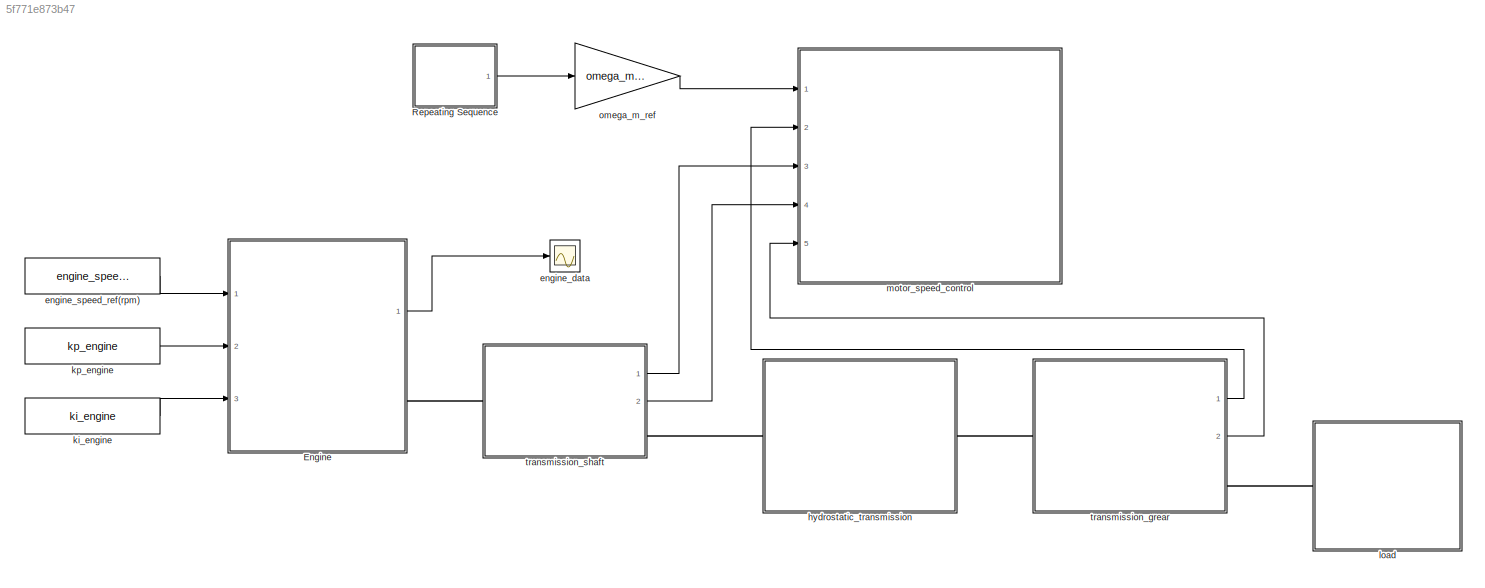
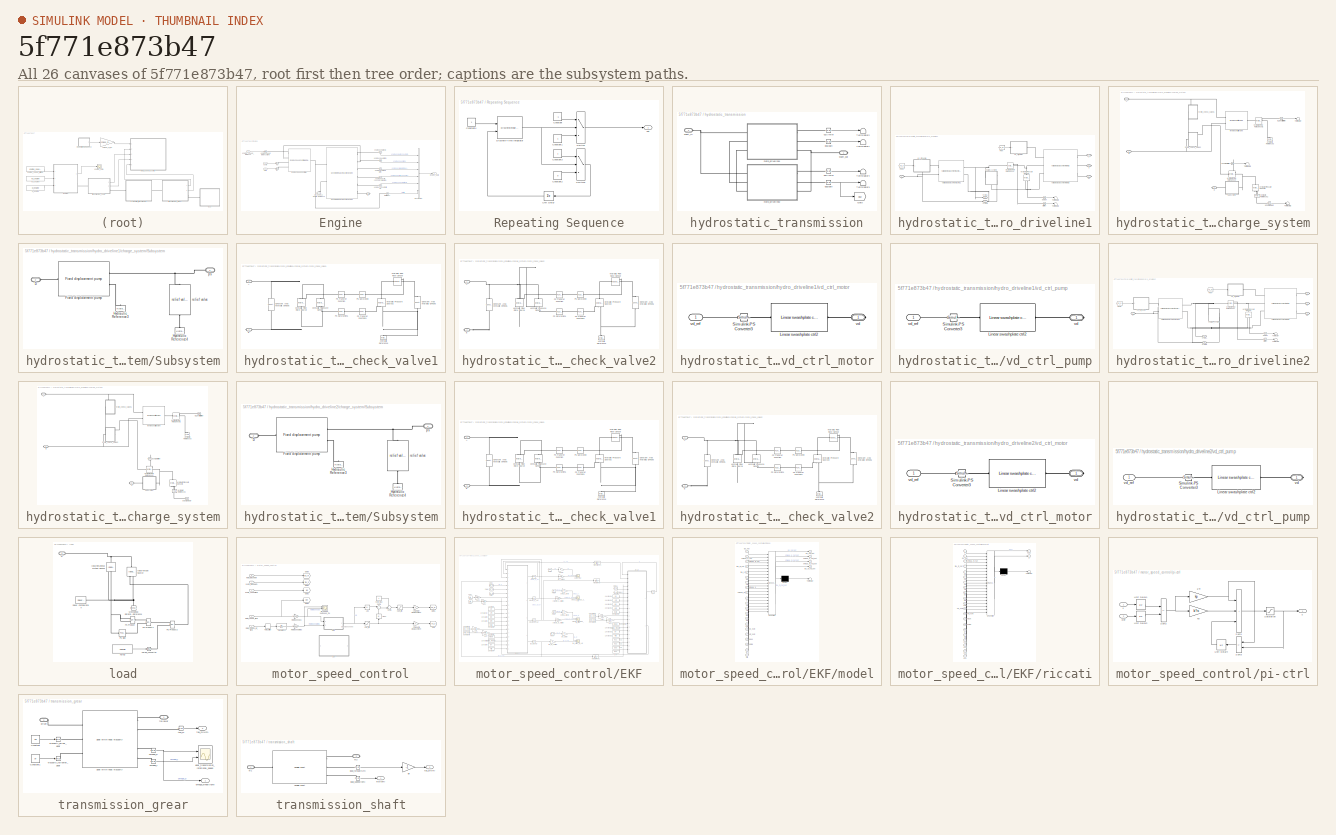
[diagram: thumbnail index - all 26 canvases of the model, root first then tree order]
MODEL slx_5f771e873b47
KIND model
CONFIG AbsTol = auto
CONFIG EnableMultiTasking = off
CONFIG FixedStep = ts
CONFIG InitFcn = , if any(exist('rtifpga_mdlclblib', 'file') ~= 0), rtifpga_mdlclblib('Init', bdroot); end,\n, if any(exist('dsmpb_private', 'file') ~= 0), dsmpb_private('dsmpb_mdlclblib', 'Init', bdroot); end,\n
CONFIG MaxStep = ts
CONFIG MinStep = auto
CONFIG PostLoadFcn = if any(exist('dsrtsu_mdlpostloadfcn', 'file') ~= 0), dsrtsu_mdlpostloadfcn('Execute', bdroot); end
CONFIG RelTol = auto
CONFIG SampleTimeConstraint = Unconstrained
CONFIG SolverName = ode1be
CONFIG StartTime = 0.0
CONFIG StopTime = inf
BLOCK [SubSystem] Engine
  Ports = [3, 1, 0, 0, 0, 0, 1]
  RequestExecContextInheritance = off
BLOCK [BusCreator] Engine/Bus Creator
  DisplayOption = bar
  InheritFromInputs = on
  Inputs = 6
  Ports = [6, 1]
BLOCK [PMIOPort] Engine/D
  Side = Right
BLOCK [Reference] Engine/Engine Speed Controller  REF=engine_speed_ctrl_kinputs_lib/Engine Speed
Controller UD with
Gains Input
  Ports = [0, 0, 0, 0, 0, 4, 1]
  SourceBlock = engine_speed_ctrl_kinputs_lib/Engine Speed\nController UD with\nGains Input
  SourceType = Engine Speed\nController UD with\nGains Input
BLOCK [Outport] Engine/Engine_Data
BLOCK [Reference] Engine/Generic Internal Combustion Engine  REF=ice_lib/Generic Internal
Combustion Engine
  Ports = [0, 0, 0, 0, 0, 2, 6]
  SourceBlock = ice_lib/Generic Internal\nCombustion Engine
  SourceType = Generic Internal\nCombustion Engine
BLOCK [Reference] Engine/Mechanical Rotational Reference  REF=fl_lib/Mechanical/Rotational Elements/Mechanical
Rotational Reference
  NameLocation = right
  Ports = [0, 0, 0, 0, 0, 1]
  SourceBlock = fl_lib/Mechanical/Rotational Elements/Mechanical\nRotational Reference
  SourceProductBaseCode = SS
  SourceType = Mechanical\nRotational Reference
BLOCK [Reference] Engine/engine available (N*m)  REF=nesl_utility/PS-Simulink
Converter
  Ports = [0, 1, 0, 0, 0, 1]
  SourceBlock = nesl_utility/PS-Simulink\nConverter
  SourceProductBaseCode = PW,SS
  SourceType = PS-Simulink\nConverter
BLOCK [Reference] Engine/engine consumption (l)  REF=nesl_utility/PS-Simulink
Converter
  Ports = [0, 1, 0, 0, 0, 1]
  SourceBlock = nesl_utility/PS-Simulink\nConverter
  SourceProductBaseCode = PW,SS
  SourceType = PS-Simulink\nConverter
BLOCK [Reference] Engine/engine power (kW)  REF=nesl_utility/PS-Simulink
Converter
  Ports = [0, 1, 0, 0, 0, 1]
  SourceBlock = nesl_utility/PS-Simulink\nConverter
  SourceProductBaseCode = PW,SS
  SourceType = PS-Simulink\nConverter
BLOCK [Reference] Engine/engine specific consumption (g//kWh)  REF=nesl_utility/PS-Simulink
Converter
  Ports = [0, 1, 0, 0, 0, 1]
  SourceBlock = nesl_utility/PS-Simulink\nConverter
  SourceProductBaseCode = PW,SS
  SourceType = PS-Simulink\nConverter
BLOCK [Reference] Engine/engine speed (rpm)  REF=nesl_utility/PS-Simulink
Converter
  Ports = [0, 1, 0, 0, 0, 1]
  SourceBlock = nesl_utility/PS-Simulink\nConverter
  SourceProductBaseCode = PW,SS
  SourceType = PS-Simulink\nConverter
BLOCK [Reference] Engine/engine speed reference (rpm)  REF=nesl_utility/Simulink-PS
Converter
  Ports = [1, 0, 0, 0, 0, 0, 1]
  SourceBlock = nesl_utility/Simulink-PS\nConverter
  SourceProductBaseCode = PW,SS
  SourceType = Simulink-PS\nConverter
BLOCK [Inport] Engine/engine_speed_reference
BLOCK [Reference] Engine/ki  REF=nesl_utility/Simulink-PS
Converter
  Ports = [1, 0, 0, 0, 0, 0, 1]
  SourceBlock = nesl_utility/Simulink-PS\nConverter
  SourceProductBaseCode = PW,SS
  SourceType = Simulink-PS\nConverter
BLOCK [Inport] Engine/ki-ctrl
  Port = 3
BLOCK [Reference] Engine/kp  REF=nesl_utility/Simulink-PS
Converter
  Ports = [1, 0, 0, 0, 0, 0, 1]
  SourceBlock = nesl_utility/Simulink-PS\nConverter
  SourceProductBaseCode = PW,SS
  SourceType = Simulink-PS\nConverter
BLOCK [Inport] Engine/kp-ctrl
  Port = 2
BLOCK [Reference] Engine/throttle (pu)  REF=nesl_utility/PS-Simulink
Converter
  Ports = [0, 1, 0, 0, 0, 1]
  SourceBlock = nesl_utility/PS-Simulink\nConverter
  SourceProductBaseCode = PW,SS
  SourceType = PS-Simulink\nConverter
BLOCK [SubSystem] Repeating Sequence
  Ports = [0, 1]
  RequestExecContextInheritance = off
BLOCK [Constant] Repeating Sequence/Constant
  Value = -1
BLOCK [Constant] Repeating Sequence/Constant1
BLOCK [Constant] Repeating Sequence/Constant2
  Value = 0
BLOCK [Constant] Repeating Sequence/Constant3
BLOCK [Constant] Repeating Sequence/Constant4
BLOCK [DiscreteIntegrator] Repeating Sequence/Discrete-Time Integrator
  ExternalReset = rising
  ICPrevOutput = DiscIntNeverNeededParam
  ICPrevScaledInput = DiscIntNeverNeededParam
  InitialConditionSetting = Auto
  IntegratorMethod = Integration: Backward Euler
  Ports = [2, 1]
  SampleTime = -1
BLOCK [Switch] Repeating Sequence/Switch
  Criteria = u2 > Threshold
  InputSameDT = off
  SaturateOnIntegerOverflow = off
  Threshold = tstep
BLOCK [Switch] Repeating Sequence/Switch1
  Criteria = u2 > Threshold
  InputSameDT = off
  SaturateOnIntegerOverflow = off
  Threshold = 2*tstep
BLOCK [UnitDelay] Repeating Sequence/Unit Delay
  HasFrameUpgradeWarning = on
  SampleTime = ts
BLOCK [Outport] Repeating Sequence/out
  NameLocation = right
BLOCK [Scope] engine_data
  Commented = on
  Floating = off
  NumInputPorts = 1
  Ports = [1]
  ScopeSpecificationString = Simulink.scopes.TimeScopeBlockCfg('CurrentConfiguration', extmgr.ConfigurationSet(extmgr.Configuration('Core','General UI',true),extmgr.Configuration('Core','Source UI',true),extmgr.Configuration('Sources','WiredSimulink',true,'DataLoggingVariableName','ScopeData3','SampleTime','ts'),extmgr.Configuration('Visuals','Time Domain',true,'SerializedDisplays',{struct('MinYLimReal','-1330.34942','MaxYLim...<+2411ch>
BLOCK [Constant] engine_speed_ref(rpm)
  Value = engine_speed_ref_rpm
BLOCK [SubSystem] hydrostatic_transmission
  Ports = [0, 0, 0, 0, 0, 1, 1]
  RequestExecContextInheritance = off
BLOCK [Goto] hydrostatic_transmission/Goto
  GotoTag = dp2
  TagVisibility = global
BLOCK [Terminator] hydrostatic_transmission/Terminator1
BLOCK [Terminator] hydrostatic_transmission/Terminator2
BLOCK [Terminator] hydrostatic_transmission/Terminator3
BLOCK [Terminator] hydrostatic_transmission/Terminator4
BLOCK [Reference] hydrostatic_transmission/dp1(bar)  REF=nesl_utility/PS-Simulink
Converter
  Ports = [0, 1, 0, 0, 0, 1]
  SourceBlock = nesl_utility/PS-Simulink\nConverter
  SourceProductBaseCode = PW,SS
  SourceType = PS-Simulink\nConverter
BLOCK [Reference] hydrostatic_transmission/dp2(bar)  REF=nesl_utility/PS-Simulink
Converter
  Ports = [0, 1, 0, 0, 0, 1]
  SourceBlock = nesl_utility/PS-Simulink\nConverter
  SourceProductBaseCode = PW,SS
  SourceType = PS-Simulink\nConverter
BLOCK [SubSystem] hydrostatic_transmission/hydro_driveline1
  Ports = [0, 0, 0, 0, 0, 3, 3]
  RequestExecContextInheritance = off
BLOCK [From] hydrostatic_transmission/hydro_driveline1/From
  GotoTag = vd_m
  TagVisibility = global
BLOCK [From] hydrostatic_transmission/hydro_driveline1/From2
  GotoTag = vd_p
  TagVisibility = global
BLOCK [Reference] hydrostatic_transmission/hydro_driveline1/Hydraulic Flow Rate Sensor  REF=fl_lib/Hydraulic/Hydraulic Sensors/Hydraulic Flow Rate
Sensor
  Ports = [0, 0, 0, 0, 0, 1, 3]
  SourceBlock = fl_lib/Hydraulic/Hydraulic Sensors/Hydraulic Flow Rate\nSensor
  SourceProductBaseCode = SS
  SourceType = Hydraulic Flow Rate\nSensor
BLOCK [Reference] hydrostatic_transmission/hydro_driveline1/Hydraulic Pressure Sensor  REF=fl_lib/Hydraulic/Hydraulic Sensors/Hydraulic Pressure
Sensor
  NameLocation = left
  Ports = [0, 0, 0, 0, 0, 1, 2]
  SourceBlock = fl_lib/Hydraulic/Hydraulic Sensors/Hydraulic Pressure\nSensor
  SourceProductBaseCode = SS
  SourceType = Hydraulic Pressure\nSensor
BLOCK [Terminator] hydrostatic_transmission/hydro_driveline1/Terminator1
BLOCK [Terminator] hydrostatic_transmission/hydro_driveline1/Terminator2
BLOCK [Reference] hydrostatic_transmission/hydro_driveline1/Variable displacement motor 2  REF=variable_displacement_motor_2_lib/Variable
displacement motor 2
  Ports = [0, 0, 0, 0, 0, 3, 3]
  SourceBlock = variable_displacement_motor_2_lib/Variable\ndisplacement motor 2
  SourceType = Variable\ndisplacement motor 2
BLOCK [Reference] hydrostatic_transmission/hydro_driveline1/Variable displacement pump 2  REF=variable_displacement_pump_2_lib/Variable
displacement pump 2
  Ports = [0, 0, 0, 0, 0, 2, 2]
  SourceBlock = variable_displacement_pump_2_lib/Variable\ndisplacement pump 2
  SourceType = Variable\ndisplacement pump 2
BLOCK [PMIOPort] hydrostatic_transmission/hydro_driveline1/c
  Port = 4
  Side = Right
BLOCK [SubSystem] hydrostatic_transmission/hydro_driveline1/charge_system
  NameLocation = right
  PortSchema = {"entries":[{"content":{"sides":[{"content":{"connectorIds":[]},"type":"ConnectorPlacement.EquallySpacedRectSide","uuid":"e48dc60c-7abd-410a-894b-273047c8aadd"},{"content":{"connectorIds":[],"side":"RIGHT"},"type":"ConnectorPlacement.EquallySpacedRectSide","uuid":"1866d745-b28e-4187-be81-03bff766c239"},{"content":{"connectorIds":["LConn1"],"side":"TOP"},"type":"ConnectorPlacement.EquallySpacedRect...<+400ch>
  Ports = [0, 0, 0, 0, 0, 1, 2]
  RequestExecContextInheritance = off
BLOCK [PMIOPort] hydrostatic_transmission/hydro_driveline1/charge_system/A
  Side = Left
BLOCK [PMIOPort] hydrostatic_transmission/hydro_driveline1/charge_system/B
  Port = 2
  Side = Right
BLOCK [PMIOPort] hydrostatic_transmission/hydro_driveline1/charge_system/D
  Port = 3
  Side = Right
BLOCK [Reference] hydrostatic_transmission/hydro_driveline1/charge_system/Hydraulic Flow Rate Sensor  REF=fl_lib/Hydraulic/Hydraulic Sensors/Hydraulic Flow Rate
Sensor
  NameLocation = top
  Ports = [0, 0, 0, 0, 0, 1, 3]
  SourceBlock = fl_lib/Hydraulic/Hydraulic Sensors/Hydraulic Flow Rate\nSensor
  SourceProductBaseCode = SS
  SourceType = Hydraulic Flow Rate\nSensor
BLOCK [Reference] hydrostatic_transmission/hydro_driveline1/charge_system/Hydraulic Flow Rate Sensor1  REF=fl_lib/Hydraulic/Hydraulic Sensors/Hydraulic Flow Rate
Sensor
  Ports = [0, 0, 0, 0, 0, 1, 3]
  SourceBlock = fl_lib/Hydraulic/Hydraulic Sensors/Hydraulic Flow Rate\nSensor
  SourceProductBaseCode = SS
  SourceType = Hydraulic Flow Rate\nSensor
BLOCK [Reference] hydrostatic_transmission/hydro_driveline1/charge_system/Hydraulic Pressure Sensor3  REF=fl_lib/Hydraulic/Hydraulic Sensors/Hydraulic Pressure
Sensor
  NameLocation = right
  Ports = [0, 0, 0, 0, 0, 1, 2]
  SourceBlock = fl_lib/Hydraulic/Hydraulic Sensors/Hydraulic Pressure\nSensor
  SourceProductBaseCode = SS
  SourceType = Hydraulic Pressure\nSensor
BLOCK [Reference] hydrostatic_transmission/hydro_driveline1/charge_system/Hydraulic Reference2  REF=fl_lib/Hydraulic/Hydraulic Elements/Hydraulic Reference
  NameLocation = right
  Ports = [0, 0, 0, 0, 0, 1]
  SourceBlock = fl_lib/Hydraulic/Hydraulic Elements/Hydraulic Reference
  SourceProductBaseCode = SS
  SourceType = Hydraulic Reference
BLOCK [Reference] hydrostatic_transmission/hydro_driveline1/charge_system/Hydraulic Reference3  REF=fl_lib/Hydraulic/Hydraulic Elements/Hydraulic Reference
  NameLocation = right
  Ports = [0, 0, 0, 0, 0, 1]
  SourceBlock = fl_lib/Hydraulic/Hydraulic Elements/Hydraulic Reference
  SourceProductBaseCode = SS
  SourceType = Hydraulic Reference
BLOCK [SubSystem] hydrostatic_transmission/hydro_driveline1/charge_system/Subsystem
  Ports = [0, 0, 0, 0, 0, 1, 1]
  RequestExecContextInheritance = off
BLOCK [PMIOPort] hydrostatic_transmission/hydro_driveline1/charge_system/Subsystem/D
  Port = 2
  Side = Left
BLOCK [Reference] hydrostatic_transmission/hydro_driveline1/charge_system/Subsystem/Fixed displacement pump  REF=fixed_displacement_pump_lib/Fixed displacement
pump
  Ports = [0, 0, 0, 0, 0, 1, 2]
  SourceBlock = fixed_displacement_pump_lib/Fixed displacement\npump
  SourceType = Fixed displacement\npump
BLOCK [Reference] hydrostatic_transmission/hydro_driveline1/charge_system/Subsystem/Hydraulic Reference3  REF=fl_lib/Hydraulic/Hydraulic Elements/Hydraulic Reference
  NameLocation = right
  Ports = [0, 0, 0, 0, 0, 1]
  SourceBlock = fl_lib/Hydraulic/Hydraulic Elements/Hydraulic Reference
  SourceProductBaseCode = SS
  SourceType = Hydraulic Reference
BLOCK [Reference] hydrostatic_transmission/hydro_driveline1/charge_system/Subsystem/Hydraulic Reference4  REF=fl_lib/Hydraulic/Hydraulic Elements/Hydraulic Reference
  NameLocation = right
  Ports = [0, 0, 0, 0, 0, 1]
  SourceBlock = fl_lib/Hydraulic/Hydraulic Elements/Hydraulic Reference
  SourceProductBaseCode = SS
  SourceType = Hydraulic Reference
BLOCK [PMIOPort] hydrostatic_transmission/hydro_driveline1/charge_system/Subsystem/ps
  Side = Right
BLOCK [Reference] hydrostatic_transmission/hydro_driveline1/charge_system/Subsystem/relief valve  REF=relief_valve_lib/relief valve
  NameLocation = left
  Ports = [0, 0, 0, 0, 0, 1, 1]
  SourceBlock = relief_valve_lib/relief valve
  SourceType = relief valve
BLOCK [Terminator] hydrostatic_transmission/hydro_driveline1/charge_system/Terminator
BLOCK [Terminator] hydrostatic_transmission/hydro_driveline1/charge_system/Terminator1
BLOCK [Terminator] hydrostatic_transmission/hydro_driveline1/charge_system/Terminator2
BLOCK [SubSystem] hydrostatic_transmission/hydro_driveline1/charge_system/hydro_check_valve1
  NameLocation = left
  PortSchema = {"entries":[{"content":{"sides":[{"content":{"connectorIds":[]},"type":"ConnectorPlacement.EquallySpacedRectSide","uuid":"a69fbb91-2279-4dfd-af6f-16497d5f1538"},{"content":{"connectorIds":[],"side":"RIGHT"},"type":"ConnectorPlacement.EquallySpacedRectSide","uuid":"52e95d44-b7af-4ccc-8556-a2abd2e724e0"},{"content":{"connectorIds":["LConn1"],"side":"TOP"},"type":"ConnectorPlacement.EquallySpacedRect...<+391ch>  <repeated x4 — deduplicated; at blocks: hydro_check_valve1, hydro_check_valve2>
  Ports = [0, 0, 0, 0, 0, 1, 1]
  RequestExecContextInheritance = off
BLOCK [PMIOPort] hydrostatic_transmission/hydro_driveline1/charge_system/hydro_check_valve1/A
  Side = Left
BLOCK [PMIOPort] hydrostatic_transmission/hydro_driveline1/charge_system/hydro_check_valve1/B
  Port = 2
  Side = Right
BLOCK [Reference] hydrostatic_transmission/hydro_driveline1/charge_system/hydro_check_valve1/Constant Area Hydraulic Orifice5  REF=fl_lib/Hydraulic/Hydraulic Elements/Constant Area
Hydraulic Orifice
  NameLocation = left
  Ports = [0, 0, 0, 0, 0, 1, 1]
  SourceBlock = fl_lib/Hydraulic/Hydraulic Elements/Constant Area\nHydraulic Orifice
  SourceProductBaseCode = SS
  SourceType = Constant Area\nHydraulic Orifice
BLOCK [Reference] hydrostatic_transmission/hydro_driveline1/charge_system/hydro_check_valve1/Constant Area Hydraulic Orifice6  REF=fl_lib/Hydraulic/Hydraulic Elements/Constant Area
Hydraulic Orifice
  NameLocation = left
  Ports = [0, 0, 0, 0, 0, 1, 1]
  SourceBlock = fl_lib/Hydraulic/Hydraulic Elements/Constant Area\nHydraulic Orifice
  SourceProductBaseCode = SS
  SourceType = Constant Area\nHydraulic Orifice
BLOCK [Reference] hydrostatic_transmission/hydro_driveline1/charge_system/hydro_check_valve1/Hydraulic Flow Rate Sensor  REF=fl_lib/Hydraulic/Hydraulic Sensors/Hydraulic Flow Rate
Sensor
  Ports = [0, 0, 0, 0, 0, 1, 3]
  SourceBlock = fl_lib/Hydraulic/Hydraulic Sensors/Hydraulic Flow Rate\nSensor
  SourceProductBaseCode = SS
  SourceType = Hydraulic Flow Rate\nSensor
BLOCK [Reference] hydrostatic_transmission/hydro_driveline1/charge_system/hydro_check_valve1/Hydraulic Flow Rate Source  REF=fl_lib/Hydraulic/Hydraulic Sources/Hydraulic Flow Rate
Source
  NameLocation = left
  Ports = [0, 0, 0, 0, 0, 1, 2]
  SourceBlock = fl_lib/Hydraulic/Hydraulic Sources/Hydraulic Flow Rate\nSource
  SourceProductBaseCode = SS
  SourceType = Hydraulic Flow Rate\nSource
BLOCK [Reference] hydrostatic_transmission/hydro_driveline1/charge_system/hydro_check_valve1/Hydraulic Pressure Sensor  REF=fl_lib/Hydraulic/Hydraulic Sensors/Hydraulic Pressure
Sensor
  NameLocation = left
  Ports = [0, 0, 0, 0, 0, 1, 2]
  SourceBlock = fl_lib/Hydraulic/Hydraulic Sensors/Hydraulic Pressure\nSensor
  SourceProductBaseCode = SS
  SourceType = Hydraulic Pressure\nSensor
BLOCK [Reference] hydrostatic_transmission/hydro_driveline1/charge_system/hydro_check_valve1/Hydraulic Pressure Source2  REF=fl_lib/Hydraulic/Hydraulic Sources/Hydraulic Pressure
Source
  NameLocation = right
  Ports = [0, 0, 0, 0, 0, 1, 2]
  SourceBlock = fl_lib/Hydraulic/Hydraulic Sources/Hydraulic Pressure\nSource
  SourceProductBaseCode = SS
  SourceType = Hydraulic Pressure\nSource
BLOCK [Reference] hydrostatic_transmission/hydro_driveline1/charge_system/hydro_check_valve1/Hydraulic Reference  REF=fl_lib/Hydraulic/Hydraulic Elements/Hydraulic Reference
  NameLocation = right
  Ports = [0, 0, 0, 0, 0, 1]
  SourceBlock = fl_lib/Hydraulic/Hydraulic Elements/Hydraulic Reference
  SourceProductBaseCode = SS
  SourceType = Hydraulic Reference
BLOCK [Reference] hydrostatic_transmission/hydro_driveline1/charge_system/hydro_check_valve1/PS Saturation  REF=fl_lib/Physical Signals/Nonlinear Operators/PS Saturation
  Ports = [0, 0, 0, 0, 0, 1, 1]
  SourceBlock = fl_lib/Physical Signals/Nonlinear Operators/PS Saturation
  SourceProductBaseCode = SS
  SourceType = PS Saturation
BLOCK [Reference] hydrostatic_transmission/hydro_driveline1/charge_system/hydro_check_valve1/PS Saturation1  REF=fl_lib/Physical Signals/Nonlinear Operators/PS Saturation
  Ports = [0, 0, 0, 0, 0, 1, 1]
  SourceBlock = fl_lib/Physical Signals/Nonlinear Operators/PS Saturation
  SourceProductBaseCode = SS
  SourceType = PS Saturation
BLOCK [Reference] hydrostatic_transmission/hydro_driveline1/charge_system/hydro_check_valve1/PS Transfer Function  REF=fl_lib/Physical Signals/Linear Operators/PS Transfer Function
  Ports = [0, 0, 0, 0, 0, 1, 1]
  SourceBlock = fl_lib/Physical Signals/Linear Operators/PS Transfer Function
  SourceProductBaseCode = SS
  SourceType = PS Transfer Function
BLOCK [Reference] hydrostatic_transmission/hydro_driveline1/charge_system/hydro_check_valve1/PS Transfer Function1  REF=fl_lib/Physical Signals/Linear Operators/PS Transfer Function
  Ports = [0, 0, 0, 0, 0, 1, 1]
  SourceBlock = fl_lib/Physical Signals/Linear Operators/PS Transfer Function
  SourceProductBaseCode = SS
  SourceType = PS Transfer Function
BLOCK [SubSystem] hydrostatic_transmission/hydro_driveline1/charge_system/hydro_check_valve2
  NameLocation = right
  Ports = [0, 0, 0, 0, 0, 1, 1]
  RequestExecContextInheritance = off
BLOCK [PMIOPort] hydrostatic_transmission/hydro_driveline1/charge_system/hydro_check_valve2/A
  Side = Left
BLOCK [PMIOPort] hydrostatic_transmission/hydro_driveline1/charge_system/hydro_check_valve2/B
  Port = 2
  Side = Right
BLOCK [Reference] hydrostatic_transmission/hydro_driveline1/charge_system/hydro_check_valve2/Constant Area Hydraulic Orifice5  REF=fl_lib/Hydraulic/Hydraulic Elements/Constant Area
Hydraulic Orifice
  NameLocation = left
  Ports = [0, 0, 0, 0, 0, 1, 1]
  SourceBlock = fl_lib/Hydraulic/Hydraulic Elements/Constant Area\nHydraulic Orifice
  SourceProductBaseCode = SS
  SourceType = Constant Area\nHydraulic Orifice
BLOCK [Reference] hydrostatic_transmission/hydro_driveline1/charge_system/hydro_check_valve2/Constant Area Hydraulic Orifice6  REF=fl_lib/Hydraulic/Hydraulic Elements/Constant Area
Hydraulic Orifice
  NameLocation = left
  Ports = [0, 0, 0, 0, 0, 1, 1]
  SourceBlock = fl_lib/Hydraulic/Hydraulic Elements/Constant Area\nHydraulic Orifice
  SourceProductBaseCode = SS
  SourceType = Constant Area\nHydraulic Orifice
BLOCK [Reference] hydrostatic_transmission/hydro_driveline1/charge_system/hydro_check_valve2/Hydraulic Flow Rate Sensor  REF=fl_lib/Hydraulic/Hydraulic Sensors/Hydraulic Flow Rate
Sensor
  Ports = [0, 0, 0, 0, 0, 1, 3]
  SourceBlock = fl_lib/Hydraulic/Hydraulic Sensors/Hydraulic Flow Rate\nSensor
  SourceProductBaseCode = SS
  SourceType = Hydraulic Flow Rate\nSensor
BLOCK [Reference] hydrostatic_transmission/hydro_driveline1/charge_system/hydro_check_valve2/Hydraulic Flow Rate Source  REF=fl_lib/Hydraulic/Hydraulic Sources/Hydraulic Flow Rate
Source
  NameLocation = left
  Ports = [0, 0, 0, 0, 0, 1, 2]
  SourceBlock = fl_lib/Hydraulic/Hydraulic Sources/Hydraulic Flow Rate\nSource
  SourceProductBaseCode = SS
  SourceType = Hydraulic Flow Rate\nSource
BLOCK [Reference] hydrostatic_transmission/hydro_driveline1/charge_system/hydro_check_valve2/Hydraulic Pressure Sensor  REF=fl_lib/Hydraulic/Hydraulic Sensors/Hydraulic Pressure
Sensor
  NameLocation = left
  Ports = [0, 0, 0, 0, 0, 1, 2]
  SourceBlock = fl_lib/Hydraulic/Hydraulic Sensors/Hydraulic Pressure\nSensor
  SourceProductBaseCode = SS
  SourceType = Hydraulic Pressure\nSensor
BLOCK [Reference] hydrostatic_transmission/hydro_driveline1/charge_system/hydro_check_valve2/Hydraulic Pressure Source2  REF=fl_lib/Hydraulic/Hydraulic Sources/Hydraulic Pressure
Source
  NameLocation = right
  Ports = [0, 0, 0, 0, 0, 1, 2]
  SourceBlock = fl_lib/Hydraulic/Hydraulic Sources/Hydraulic Pressure\nSource
  SourceProductBaseCode = SS
  SourceType = Hydraulic Pressure\nSource
BLOCK [Reference] hydrostatic_transmission/hydro_driveline1/charge_system/hydro_check_valve2/Hydraulic Reference  REF=fl_lib/Hydraulic/Hydraulic Elements/Hydraulic Reference
  NameLocation = right
  Ports = [0, 0, 0, 0, 0, 1]
  SourceBlock = fl_lib/Hydraulic/Hydraulic Elements/Hydraulic Reference
  SourceProductBaseCode = SS
  SourceType = Hydraulic Reference
BLOCK [Reference] hydrostatic_transmission/hydro_driveline1/charge_system/hydro_check_valve2/PS Saturation  REF=fl_lib/Physical Signals/Nonlinear Operators/PS Saturation
  Ports = [0, 0, 0, 0, 0, 1, 1]
  SourceBlock = fl_lib/Physical Signals/Nonlinear Operators/PS Saturation
  SourceProductBaseCode = SS
  SourceType = PS Saturation
BLOCK [Reference] hydrostatic_transmission/hydro_driveline1/charge_system/hydro_check_valve2/PS Saturation1  REF=fl_lib/Physical Signals/Nonlinear Operators/PS Saturation
  Ports = [0, 0, 0, 0, 0, 1, 1]
  SourceBlock = fl_lib/Physical Signals/Nonlinear Operators/PS Saturation
  SourceProductBaseCode = SS
  SourceType = PS Saturation
BLOCK [Reference] hydrostatic_transmission/hydro_driveline1/charge_system/hydro_check_valve2/PS Transfer Function  REF=fl_lib/Physical Signals/Linear Operators/PS Transfer Function
  Ports = [0, 0, 0, 0, 0, 1, 1]
  SourceBlock = fl_lib/Physical Signals/Linear Operators/PS Transfer Function
  SourceProductBaseCode = SS
  SourceType = PS Transfer Function
BLOCK [Reference] hydrostatic_transmission/hydro_driveline1/charge_system/hydro_check_valve2/PS Transfer Function1  REF=fl_lib/Physical Signals/Linear Operators/PS Transfer Function
  Ports = [0, 0, 0, 0, 0, 1, 1]
  SourceBlock = fl_lib/Physical Signals/Linear Operators/PS Transfer Function
  SourceProductBaseCode = SS
  SourceType = PS Transfer Function
BLOCK [Reference] hydrostatic_transmission/hydro_driveline1/charge_system/inverse shuttle valve  REF=inverse_shuttle_valve_lib/inverse shuttle
valve
  Ports = [0, 0, 0, 0, 0, 2, 1]
  SourceBlock = inverse_shuttle_valve_lib/inverse shuttle\nvalve
  SourceType = inverse shuttle\nvalve
BLOCK [Reference] hydrostatic_transmission/hydro_driveline1/charge_system/pCharge(bar)  REF=nesl_utility/PS-Simulink
Converter
  Ports = [0, 1, 0, 0, 0, 1]
  SourceBlock = nesl_utility/PS-Simulink\nConverter
  SourceProductBaseCode = PW,SS
  SourceType = PS-Simulink\nConverter
BLOCK [Reference] hydrostatic_transmission/hydro_driveline1/charge_system/qcharge(l//min)  REF=nesl_utility/PS-Simulink
Converter
  Ports = [0, 1, 0, 0, 0, 1]
  SourceBlock = nesl_utility/PS-Simulink\nConverter
  SourceProductBaseCode = PW,SS
  SourceType = PS-Simulink\nConverter
BLOCK [Reference] hydrostatic_transmission/hydro_driveline1/charge_system/qt_ishuttle(l//min)  REF=nesl_utility/PS-Simulink
Converter
  Ports = [0, 1, 0, 0, 0, 1]
  SourceBlock = nesl_utility/PS-Simulink\nConverter
  SourceProductBaseCode = PW,SS
  SourceType = PS-Simulink\nConverter
BLOCK [PMIOPort] hydrostatic_transmission/hydro_driveline1/dp
  Port = 3
  Side = Right
BLOCK [Reference] hydrostatic_transmission/hydro_driveline1/dp(bar)  REF=nesl_utility/PS-Simulink
Converter
  Ports = [0, 1, 0, 0, 0, 1]
  SourceBlock = nesl_utility/PS-Simulink\nConverter
  SourceProductBaseCode = PW,SS
  SourceType = PS-Simulink\nConverter
BLOCK [PMIOPort] hydrostatic_transmission/hydro_driveline1/hydroA
  NameLocation = top
  Port = 5
  Side = Left
BLOCK [PMIOPort] hydrostatic_transmission/hydro_driveline1/hydroB
  Port = 6
  Side = Left
BLOCK [PMIOPort] hydrostatic_transmission/hydro_driveline1/q
  Port = 2
  Side = Right
BLOCK [Reference] hydrostatic_transmission/hydro_driveline1/q(l//min)  REF=nesl_utility/PS-Simulink
Converter
  Ports = [0, 1, 0, 0, 0, 1]
  SourceBlock = nesl_utility/PS-Simulink\nConverter
  SourceProductBaseCode = PW,SS
  SourceType = PS-Simulink\nConverter
BLOCK [PMIOPort] hydrostatic_transmission/hydro_driveline1/s
  Side = Left
BLOCK [SubSystem] hydrostatic_transmission/hydro_driveline1/vd_ctrl_motor
  Ports = [1, 0, 0, 0, 0, 0, 1]
  RequestExecContextInheritance = off
BLOCK [Reference] hydrostatic_transmission/hydro_driveline1/vd_ctrl_motor/Linear swashplate ctrl2  REF=linear_swashplate_ctrl_lib/Linear swashplate
ctrl
  Ports = [0, 0, 0, 0, 0, 1, 1]
  SourceBlock = linear_swashplate_ctrl_lib/Linear swashplate\nctrl
  SourceType = Linear swashplate\nctrl
BLOCK [Reference] hydrostatic_transmission/hydro_driveline1/vd_ctrl_motor/Simulink-PS Converter3  REF=nesl_utility/Simulink-PS
Converter
  Ports = [1, 0, 0, 0, 0, 0, 1]
  SourceBlock = nesl_utility/Simulink-PS\nConverter
  SourceProductBaseCode = PW,SS
  SourceType = Simulink-PS\nConverter
BLOCK [PMIOPort] hydrostatic_transmission/hydro_driveline1/vd_ctrl_motor/vd
  Side = Right
BLOCK [Inport] hydrostatic_transmission/hydro_driveline1/vd_ctrl_motor/vd_ref
BLOCK [SubSystem] hydrostatic_transmission/hydro_driveline1/vd_ctrl_pump
  Ports = [1, 0, 0, 0, 0, 0, 1]
  RequestExecContextInheritance = off
BLOCK [Reference] hydrostatic_transmission/hydro_driveline1/vd_ctrl_pump/Linear swashplate ctrl2  REF=linear_swashplate_ctrl_lib/Linear swashplate
ctrl
  Ports = [0, 0, 0, 0, 0, 1, 1]
  SourceBlock = linear_swashplate_ctrl_lib/Linear swashplate\nctrl
  SourceType = Linear swashplate\nctrl
BLOCK [Reference] hydrostatic_transmission/hydro_driveline1/vd_ctrl_pump/Simulink-PS Converter3  REF=nesl_utility/Simulink-PS
Converter
  Ports = [1, 0, 0, 0, 0, 0, 1]
  SourceBlock = nesl_utility/Simulink-PS\nConverter
  SourceProductBaseCode = PW,SS
  SourceType = Simulink-PS\nConverter
BLOCK [PMIOPort] hydrostatic_transmission/hydro_driveline1/vd_ctrl_pump/vd
  Side = Right
BLOCK [Inport] hydrostatic_transmission/hydro_driveline1/vd_ctrl_pump/vd_ref
BLOCK [SubSystem] hydrostatic_transmission/hydro_driveline2
  Ports = [0, 0, 0, 0, 0, 3, 3]
  RequestExecContextInheritance = off
BLOCK [From] hydrostatic_transmission/hydro_driveline2/From
  GotoTag = vd_m
  TagVisibility = global
BLOCK [From] hydrostatic_transmission/hydro_driveline2/From2
  GotoTag = vd_p
  TagVisibility = global
BLOCK [Reference] hydrostatic_transmission/hydro_driveline2/Hydraulic Flow Rate Sensor  REF=fl_lib/Hydraulic/Hydraulic Sensors/Hydraulic Flow Rate
Sensor
  Ports = [0, 0, 0, 0, 0, 1, 3]
  SourceBlock = fl_lib/Hydraulic/Hydraulic Sensors/Hydraulic Flow Rate\nSensor
  SourceProductBaseCode = SS
  SourceType = Hydraulic Flow Rate\nSensor
BLOCK [Reference] hydrostatic_transmission/hydro_driveline2/Hydraulic Pressure Sensor  REF=fl_lib/Hydraulic/Hydraulic Sensors/Hydraulic Pressure
Sensor
  NameLocation = left
  Ports = [0, 0, 0, 0, 0, 1, 2]
  SourceBlock = fl_lib/Hydraulic/Hydraulic Sensors/Hydraulic Pressure\nSensor
  SourceProductBaseCode = SS
  SourceType = Hydraulic Pressure\nSensor
BLOCK [Terminator] hydrostatic_transmission/hydro_driveline2/Terminator
BLOCK [Terminator] hydrostatic_transmission/hydro_driveline2/Terminator1
BLOCK [Reference] hydrostatic_transmission/hydro_driveline2/Variable displacement motor 2  REF=variable_displacement_motor_2_lib/Variable
displacement motor 2
  Ports = [0, 0, 0, 0, 0, 3, 3]
  SourceBlock = variable_displacement_motor_2_lib/Variable\ndisplacement motor 2
  SourceType = Variable\ndisplacement motor 2
BLOCK [Reference] hydrostatic_transmission/hydro_driveline2/Variable displacement pump 2  REF=variable_displacement_pump_2_lib/Variable
displacement pump 2
  Ports = [0, 0, 0, 0, 0, 2, 2]
  SourceBlock = variable_displacement_pump_2_lib/Variable\ndisplacement pump 2
  SourceType = Variable\ndisplacement pump 2
BLOCK [PMIOPort] hydrostatic_transmission/hydro_driveline2/c
  Port = 4
  Side = Right
BLOCK [SubSystem] hydrostatic_transmission/hydro_driveline2/charge_system
  NameLocation = right
  PortSchema = {"entries":[{"content":{"sides":[{"content":{"connectorIds":[]},"type":"ConnectorPlacement.EquallySpacedRectSide","uuid":"e48dc60c-7abd-410a-894b-273047c8aadd"},{"content":{"connectorIds":[],"side":"RIGHT"},"type":"ConnectorPlacement.EquallySpacedRectSide","uuid":"1866d745-b28e-4187-be81-03bff766c239"},{"content":{"connectorIds":["LConn1"],"side":"TOP"},"type":"ConnectorPlacement.EquallySpacedRect...<+400ch>
  Ports = [0, 0, 0, 0, 0, 1, 2]
  RequestExecContextInheritance = off
BLOCK [PMIOPort] hydrostatic_transmission/hydro_driveline2/charge_system/A
  Side = Left
BLOCK [PMIOPort] hydrostatic_transmission/hydro_driveline2/charge_system/B
  Port = 2
  Side = Right
BLOCK [PMIOPort] hydrostatic_transmission/hydro_driveline2/charge_system/D
  Port = 3
  Side = Right
BLOCK [Reference] hydrostatic_transmission/hydro_driveline2/charge_system/Hydraulic Flow Rate Sensor  REF=fl_lib/Hydraulic/Hydraulic Sensors/Hydraulic Flow Rate
Sensor
  NameLocation = top
  Ports = [0, 0, 0, 0, 0, 1, 3]
  SourceBlock = fl_lib/Hydraulic/Hydraulic Sensors/Hydraulic Flow Rate\nSensor
  SourceProductBaseCode = SS
  SourceType = Hydraulic Flow Rate\nSensor
BLOCK [Reference] hydrostatic_transmission/hydro_driveline2/charge_system/Hydraulic Flow Rate Sensor1  REF=fl_lib/Hydraulic/Hydraulic Sensors/Hydraulic Flow Rate
Sensor
  Ports = [0, 0, 0, 0, 0, 1, 3]
  SourceBlock = fl_lib/Hydraulic/Hydraulic Sensors/Hydraulic Flow Rate\nSensor
  SourceProductBaseCode = SS
  SourceType = Hydraulic Flow Rate\nSensor
BLOCK [Reference] hydrostatic_transmission/hydro_driveline2/charge_system/Hydraulic Pressure Sensor3  REF=fl_lib/Hydraulic/Hydraulic Sensors/Hydraulic Pressure
Sensor
  NameLocation = right
  Ports = [0, 0, 0, 0, 0, 1, 2]
  SourceBlock = fl_lib/Hydraulic/Hydraulic Sensors/Hydraulic Pressure\nSensor
  SourceProductBaseCode = SS
  SourceType = Hydraulic Pressure\nSensor
BLOCK [Reference] hydrostatic_transmission/hydro_driveline2/charge_system/Hydraulic Reference2  REF=fl_lib/Hydraulic/Hydraulic Elements/Hydraulic Reference
  NameLocation = right
  Ports = [0, 0, 0, 0, 0, 1]
  SourceBlock = fl_lib/Hydraulic/Hydraulic Elements/Hydraulic Reference
  SourceProductBaseCode = SS
  SourceType = Hydraulic Reference
BLOCK [Reference] hydrostatic_transmission/hydro_driveline2/charge_system/Hydraulic Reference3  REF=fl_lib/Hydraulic/Hydraulic Elements/Hydraulic Reference
  NameLocation = right
  Ports = [0, 0, 0, 0, 0, 1]
  SourceBlock = fl_lib/Hydraulic/Hydraulic Elements/Hydraulic Reference
  SourceProductBaseCode = SS
  SourceType = Hydraulic Reference
BLOCK [SubSystem] hydrostatic_transmission/hydro_driveline2/charge_system/Subsystem
  Ports = [0, 0, 0, 0, 0, 1, 1]
  RequestExecContextInheritance = off
BLOCK [PMIOPort] hydrostatic_transmission/hydro_driveline2/charge_system/Subsystem/D
  Port = 2
  Side = Left
BLOCK [Reference] hydrostatic_transmission/hydro_driveline2/charge_system/Subsystem/Fixed displacement pump  REF=fixed_displacement_pump_lib/Fixed displacement
pump
  Ports = [0, 0, 0, 0, 0, 1, 2]
  SourceBlock = fixed_displacement_pump_lib/Fixed displacement\npump
  SourceType = Fixed displacement\npump
BLOCK [Reference] hydrostatic_transmission/hydro_driveline2/charge_system/Subsystem/Hydraulic Reference3  REF=fl_lib/Hydraulic/Hydraulic Elements/Hydraulic Reference
  NameLocation = right
  Ports = [0, 0, 0, 0, 0, 1]
  SourceBlock = fl_lib/Hydraulic/Hydraulic Elements/Hydraulic Reference
  SourceProductBaseCode = SS
  SourceType = Hydraulic Reference
BLOCK [Reference] hydrostatic_transmission/hydro_driveline2/charge_system/Subsystem/Hydraulic Reference4  REF=fl_lib/Hydraulic/Hydraulic Elements/Hydraulic Reference
  NameLocation = right
  Ports = [0, 0, 0, 0, 0, 1]
  SourceBlock = fl_lib/Hydraulic/Hydraulic Elements/Hydraulic Reference
  SourceProductBaseCode = SS
  SourceType = Hydraulic Reference
BLOCK [PMIOPort] hydrostatic_transmission/hydro_driveline2/charge_system/Subsystem/ps
  Side = Right
BLOCK [Reference] hydrostatic_transmission/hydro_driveline2/charge_system/Subsystem/relief valve  REF=relief_valve_lib/relief valve
  NameLocation = left
  Ports = [0, 0, 0, 0, 0, 1, 1]
  SourceBlock = relief_valve_lib/relief valve
  SourceType = relief valve
BLOCK [SubSystem] hydrostatic_transmission/hydro_driveline2/charge_system/hydro_check_valve1
  NameLocation = left
  Ports = [0, 0, 0, 0, 0, 1, 1]
  RequestExecContextInheritance = off
BLOCK [PMIOPort] hydrostatic_transmission/hydro_driveline2/charge_system/hydro_check_valve1/A
  Side = Left
BLOCK [PMIOPort] hydrostatic_transmission/hydro_driveline2/charge_system/hydro_check_valve1/B
  Port = 2
  Side = Right
BLOCK [Reference] hydrostatic_transmission/hydro_driveline2/charge_system/hydro_check_valve1/Constant Area Hydraulic Orifice5  REF=fl_lib/Hydraulic/Hydraulic Elements/Constant Area
Hydraulic Orifice
  NameLocation = left
  Ports = [0, 0, 0, 0, 0, 1, 1]
  SourceBlock = fl_lib/Hydraulic/Hydraulic Elements/Constant Area\nHydraulic Orifice
  SourceProductBaseCode = SS
  SourceType = Constant Area\nHydraulic Orifice
BLOCK [Reference] hydrostatic_transmission/hydro_driveline2/charge_system/hydro_check_valve1/Constant Area Hydraulic Orifice6  REF=fl_lib/Hydraulic/Hydraulic Elements/Constant Area
Hydraulic Orifice
  NameLocation = left
  Ports = [0, 0, 0, 0, 0, 1, 1]
  SourceBlock = fl_lib/Hydraulic/Hydraulic Elements/Constant Area\nHydraulic Orifice
  SourceProductBaseCode = SS
  SourceType = Constant Area\nHydraulic Orifice
BLOCK [Reference] hydrostatic_transmission/hydro_driveline2/charge_system/hydro_check_valve1/Hydraulic Flow Rate Sensor  REF=fl_lib/Hydraulic/Hydraulic Sensors/Hydraulic Flow Rate
Sensor
  Ports = [0, 0, 0, 0, 0, 1, 3]
  SourceBlock = fl_lib/Hydraulic/Hydraulic Sensors/Hydraulic Flow Rate\nSensor
  SourceProductBaseCode = SS
  SourceType = Hydraulic Flow Rate\nSensor
BLOCK [Reference] hydrostatic_transmission/hydro_driveline2/charge_system/hydro_check_valve1/Hydraulic Flow Rate Source  REF=fl_lib/Hydraulic/Hydraulic Sources/Hydraulic Flow Rate
Source
  NameLocation = left
  Ports = [0, 0, 0, 0, 0, 1, 2]
  SourceBlock = fl_lib/Hydraulic/Hydraulic Sources/Hydraulic Flow Rate\nSource
  SourceProductBaseCode = SS
  SourceType = Hydraulic Flow Rate\nSource
BLOCK [Reference] hydrostatic_transmission/hydro_driveline2/charge_system/hydro_check_valve1/Hydraulic Pressure Sensor  REF=fl_lib/Hydraulic/Hydraulic Sensors/Hydraulic Pressure
Sensor
  NameLocation = left
  Ports = [0, 0, 0, 0, 0, 1, 2]
  SourceBlock = fl_lib/Hydraulic/Hydraulic Sensors/Hydraulic Pressure\nSensor
  SourceProductBaseCode = SS
  SourceType = Hydraulic Pressure\nSensor
BLOCK [Reference] hydrostatic_transmission/hydro_driveline2/charge_system/hydro_check_valve1/Hydraulic Pressure Source2  REF=fl_lib/Hydraulic/Hydraulic Sources/Hydraulic Pressure
Source
  NameLocation = right
  Ports = [0, 0, 0, 0, 0, 1, 2]
  SourceBlock = fl_lib/Hydraulic/Hydraulic Sources/Hydraulic Pressure\nSource
  SourceProductBaseCode = SS
  SourceType = Hydraulic Pressure\nSource
BLOCK [Reference] hydrostatic_transmission/hydro_driveline2/charge_system/hydro_check_valve1/Hydraulic Reference  REF=fl_lib/Hydraulic/Hydraulic Elements/Hydraulic Reference
  NameLocation = right
  Ports = [0, 0, 0, 0, 0, 1]
  SourceBlock = fl_lib/Hydraulic/Hydraulic Elements/Hydraulic Reference
  SourceProductBaseCode = SS
  SourceType = Hydraulic Reference
BLOCK [Reference] hydrostatic_transmission/hydro_driveline2/charge_system/hydro_check_valve1/PS Saturation  REF=fl_lib/Physical Signals/Nonlinear Operators/PS Saturation
  Ports = [0, 0, 0, 0, 0, 1, 1]
  SourceBlock = fl_lib/Physical Signals/Nonlinear Operators/PS Saturation
  SourceProductBaseCode = SS
  SourceType = PS Saturation
BLOCK [Reference] hydrostatic_transmission/hydro_driveline2/charge_system/hydro_check_valve1/PS Saturation1  REF=fl_lib/Physical Signals/Nonlinear Operators/PS Saturation
  Ports = [0, 0, 0, 0, 0, 1, 1]
  SourceBlock = fl_lib/Physical Signals/Nonlinear Operators/PS Saturation
  SourceProductBaseCode = SS
  SourceType = PS Saturation
BLOCK [Reference] hydrostatic_transmission/hydro_driveline2/charge_system/hydro_check_valve1/PS Transfer Function  REF=fl_lib/Physical Signals/Linear Operators/PS Transfer Function
  Ports = [0, 0, 0, 0, 0, 1, 1]
  SourceBlock = fl_lib/Physical Signals/Linear Operators/PS Transfer Function
  SourceProductBaseCode = SS
  SourceType = PS Transfer Function
BLOCK [Reference] hydrostatic_transmission/hydro_driveline2/charge_system/hydro_check_valve1/PS Transfer Function1  REF=fl_lib/Physical Signals/Linear Operators/PS Transfer Function
  Ports = [0, 0, 0, 0, 0, 1, 1]
  SourceBlock = fl_lib/Physical Signals/Linear Operators/PS Transfer Function
  SourceProductBaseCode = SS
  SourceType = PS Transfer Function
BLOCK [SubSystem] hydrostatic_transmission/hydro_driveline2/charge_system/hydro_check_valve2
  NameLocation = right
  Ports = [0, 0, 0, 0, 0, 1, 1]
  RequestExecContextInheritance = off
BLOCK [PMIOPort] hydrostatic_transmission/hydro_driveline2/charge_system/hydro_check_valve2/A
  Side = Left
BLOCK [PMIOPort] hydrostatic_transmission/hydro_driveline2/charge_system/hydro_check_valve2/B
  Port = 2
  Side = Right
BLOCK [Reference] hydrostatic_transmission/hydro_driveline2/charge_system/hydro_check_valve2/Constant Area Hydraulic Orifice5  REF=fl_lib/Hydraulic/Hydraulic Elements/Constant Area
Hydraulic Orifice
  NameLocation = left
  Ports = [0, 0, 0, 0, 0, 1, 1]
  SourceBlock = fl_lib/Hydraulic/Hydraulic Elements/Constant Area\nHydraulic Orifice
  SourceProductBaseCode = SS
  SourceType = Constant Area\nHydraulic Orifice
BLOCK [Reference] hydrostatic_transmission/hydro_driveline2/charge_system/hydro_check_valve2/Constant Area Hydraulic Orifice6  REF=fl_lib/Hydraulic/Hydraulic Elements/Constant Area
Hydraulic Orifice
  NameLocation = left
  Ports = [0, 0, 0, 0, 0, 1, 1]
  SourceBlock = fl_lib/Hydraulic/Hydraulic Elements/Constant Area\nHydraulic Orifice
  SourceProductBaseCode = SS
  SourceType = Constant Area\nHydraulic Orifice
BLOCK [Reference] hydrostatic_transmission/hydro_driveline2/charge_system/hydro_check_valve2/Hydraulic Flow Rate Sensor  REF=fl_lib/Hydraulic/Hydraulic Sensors/Hydraulic Flow Rate
Sensor
  Ports = [0, 0, 0, 0, 0, 1, 3]
  SourceBlock = fl_lib/Hydraulic/Hydraulic Sensors/Hydraulic Flow Rate\nSensor
  SourceProductBaseCode = SS
  SourceType = Hydraulic Flow Rate\nSensor
BLOCK [Reference] hydrostatic_transmission/hydro_driveline2/charge_system/hydro_check_valve2/Hydraulic Flow Rate Source  REF=fl_lib/Hydraulic/Hydraulic Sources/Hydraulic Flow Rate
Source
  NameLocation = left
  Ports = [0, 0, 0, 0, 0, 1, 2]
  SourceBlock = fl_lib/Hydraulic/Hydraulic Sources/Hydraulic Flow Rate\nSource
  SourceProductBaseCode = SS
  SourceType = Hydraulic Flow Rate\nSource
BLOCK [Reference] hydrostatic_transmission/hydro_driveline2/charge_system/hydro_check_valve2/Hydraulic Pressure Sensor  REF=fl_lib/Hydraulic/Hydraulic Sensors/Hydraulic Pressure
Sensor
  NameLocation = left
  Ports = [0, 0, 0, 0, 0, 1, 2]
  SourceBlock = fl_lib/Hydraulic/Hydraulic Sensors/Hydraulic Pressure\nSensor
  SourceProductBaseCode = SS
  SourceType = Hydraulic Pressure\nSensor
BLOCK [Reference] hydrostatic_transmission/hydro_driveline2/charge_system/hydro_check_valve2/Hydraulic Pressure Source2  REF=fl_lib/Hydraulic/Hydraulic Sources/Hydraulic Pressure
Source
  NameLocation = right
  Ports = [0, 0, 0, 0, 0, 1, 2]
  SourceBlock = fl_lib/Hydraulic/Hydraulic Sources/Hydraulic Pressure\nSource
  SourceProductBaseCode = SS
  SourceType = Hydraulic Pressure\nSource
BLOCK [Reference] hydrostatic_transmission/hydro_driveline2/charge_system/hydro_check_valve2/Hydraulic Reference  REF=fl_lib/Hydraulic/Hydraulic Elements/Hydraulic Reference
  NameLocation = right
  Ports = [0, 0, 0, 0, 0, 1]
  SourceBlock = fl_lib/Hydraulic/Hydraulic Elements/Hydraulic Reference
  SourceProductBaseCode = SS
  SourceType = Hydraulic Reference
BLOCK [Reference] hydrostatic_transmission/hydro_driveline2/charge_system/hydro_check_valve2/PS Saturation  REF=fl_lib/Physical Signals/Nonlinear Operators/PS Saturation
  Ports = [0, 0, 0, 0, 0, 1, 1]
  SourceBlock = fl_lib/Physical Signals/Nonlinear Operators/PS Saturation
  SourceProductBaseCode = SS
  SourceType = PS Saturation
BLOCK [Reference] hydrostatic_transmission/hydro_driveline2/charge_system/hydro_check_valve2/PS Saturation1  REF=fl_lib/Physical Signals/Nonlinear Operators/PS Saturation
  Ports = [0, 0, 0, 0, 0, 1, 1]
  SourceBlock = fl_lib/Physical Signals/Nonlinear Operators/PS Saturation
  SourceProductBaseCode = SS
  SourceType = PS Saturation
BLOCK [Reference] hydrostatic_transmission/hydro_driveline2/charge_system/hydro_check_valve2/PS Transfer Function  REF=fl_lib/Physical Signals/Linear Operators/PS Transfer Function
  Ports = [0, 0, 0, 0, 0, 1, 1]
  SourceBlock = fl_lib/Physical Signals/Linear Operators/PS Transfer Function
  SourceProductBaseCode = SS
  SourceType = PS Transfer Function
BLOCK [Reference] hydrostatic_transmission/hydro_driveline2/charge_system/hydro_check_valve2/PS Transfer Function1  REF=fl_lib/Physical Signals/Linear Operators/PS Transfer Function
  Ports = [0, 0, 0, 0, 0, 1, 1]
  SourceBlock = fl_lib/Physical Signals/Linear Operators/PS Transfer Function
  SourceProductBaseCode = SS
  SourceType = PS Transfer Function
BLOCK [Reference] hydrostatic_transmission/hydro_driveline2/charge_system/inverse shuttle valve  REF=inverse_shuttle_valve_lib/inverse shuttle
valve
  Ports = [0, 0, 0, 0, 0, 2, 1]
  SourceBlock = inverse_shuttle_valve_lib/inverse shuttle\nvalve
  SourceType = inverse shuttle\nvalve
BLOCK [Reference] hydrostatic_transmission/hydro_driveline2/charge_system/pCharge(bar)  REF=nesl_utility/PS-Simulink
Converter
  Ports = [0, 1, 0, 0, 0, 1]
  SourceBlock = nesl_utility/PS-Simulink\nConverter
  SourceProductBaseCode = PW,SS
  SourceType = PS-Simulink\nConverter
BLOCK [Reference] hydrostatic_transmission/hydro_driveline2/charge_system/qcharge(l//min)  REF=nesl_utility/PS-Simulink
Converter
  Ports = [0, 1, 0, 0, 0, 1]
  SourceBlock = nesl_utility/PS-Simulink\nConverter
  SourceProductBaseCode = PW,SS
  SourceType = PS-Simulink\nConverter
BLOCK [Reference] hydrostatic_transmission/hydro_driveline2/charge_system/qt_ishuttle(l//min)  REF=nesl_utility/PS-Simulink
Converter
  Ports = [0, 1, 0, 0, 0, 1]
  SourceBlock = nesl_utility/PS-Simulink\nConverter
  SourceProductBaseCode = PW,SS
  SourceType = PS-Simulink\nConverter
BLOCK [PMIOPort] hydrostatic_transmission/hydro_driveline2/dp
  Port = 3
  Side = Right
BLOCK [Reference] hydrostatic_transmission/hydro_driveline2/dp(bar)  REF=nesl_utility/PS-Simulink
Converter
  Ports = [0, 1, 0, 0, 0, 1]
  SourceBlock = nesl_utility/PS-Simulink\nConverter
  SourceProductBaseCode = PW,SS
  SourceType = PS-Simulink\nConverter
BLOCK [PMIOPort] hydrostatic_transmission/hydro_driveline2/hydroA
  NameLocation = top
  Port = 5
  Side = Left
BLOCK [PMIOPort] hydrostatic_transmission/hydro_driveline2/hydroB
  Port = 6
  Side = Left
BLOCK [PMIOPort] hydrostatic_transmission/hydro_driveline2/q
  Port = 2
  Side = Right
BLOCK [Reference] hydrostatic_transmission/hydro_driveline2/q(l//min)  REF=nesl_utility/PS-Simulink
Converter
  Ports = [0, 1, 0, 0, 0, 1]
  SourceBlock = nesl_utility/PS-Simulink\nConverter
  SourceProductBaseCode = PW,SS
  SourceType = PS-Simulink\nConverter
BLOCK [PMIOPort] hydrostatic_transmission/hydro_driveline2/s
  Side = Left
BLOCK [SubSystem] hydrostatic_transmission/hydro_driveline2/vd_ctrl_motor
  Ports = [1, 0, 0, 0, 0, 0, 1]
  RequestExecContextInheritance = off
BLOCK [Reference] hydrostatic_transmission/hydro_driveline2/vd_ctrl_motor/Linear swashplate ctrl2  REF=linear_swashplate_ctrl_lib/Linear swashplate
ctrl
  Ports = [0, 0, 0, 0, 0, 1, 1]
  SourceBlock = linear_swashplate_ctrl_lib/Linear swashplate\nctrl
  SourceType = Linear swashplate\nctrl
BLOCK [Reference] hydrostatic_transmission/hydro_driveline2/vd_ctrl_motor/Simulink-PS Converter3  REF=nesl_utility/Simulink-PS
Converter
  Ports = [1, 0, 0, 0, 0, 0, 1]
  SourceBlock = nesl_utility/Simulink-PS\nConverter
  SourceProductBaseCode = PW,SS
  SourceType = Simulink-PS\nConverter
BLOCK [PMIOPort] hydrostatic_transmission/hydro_driveline2/vd_ctrl_motor/vd
  Side = Right
BLOCK [Inport] hydrostatic_transmission/hydro_driveline2/vd_ctrl_motor/vd_ref
BLOCK [SubSystem] hydrostatic_transmission/hydro_driveline2/vd_ctrl_pump
  Ports = [1, 0, 0, 0, 0, 0, 1]
  RequestExecContextInheritance = off
BLOCK [Reference] hydrostatic_transmission/hydro_driveline2/vd_ctrl_pump/Linear swashplate ctrl2  REF=linear_swashplate_ctrl_lib/Linear swashplate
ctrl
  Ports = [0, 0, 0, 0, 0, 1, 1]
  SourceBlock = linear_swashplate_ctrl_lib/Linear swashplate\nctrl
  SourceType = Linear swashplate\nctrl
BLOCK [Reference] hydrostatic_transmission/hydro_driveline2/vd_ctrl_pump/Simulink-PS Converter3  REF=nesl_utility/Simulink-PS
Converter
  Ports = [1, 0, 0, 0, 0, 0, 1]
  SourceBlock = nesl_utility/Simulink-PS\nConverter
  SourceProductBaseCode = PW,SS
  SourceType = Simulink-PS\nConverter
BLOCK [PMIOPort] hydrostatic_transmission/hydro_driveline2/vd_ctrl_pump/vd
  Side = Right
BLOCK [Inport] hydrostatic_transmission/hydro_driveline2/vd_ctrl_pump/vd_ref
BLOCK [Reference] hydrostatic_transmission/q1(l//min)  REF=nesl_utility/PS-Simulink
Converter
  Ports = [0, 1, 0, 0, 0, 1]
  SourceBlock = nesl_utility/PS-Simulink\nConverter
  SourceProductBaseCode = PW,SS
  SourceType = PS-Simulink\nConverter
BLOCK [Reference] hydrostatic_transmission/q2(l//min)  REF=nesl_utility/PS-Simulink
Converter
  Ports = [0, 1, 0, 0, 0, 1]
  SourceBlock = nesl_utility/PS-Simulink\nConverter
  SourceProductBaseCode = PW,SS
  SourceType = PS-Simulink\nConverter
BLOCK [PMIOPort] hydrostatic_transmission/shaft_in
  Port = 2
  Side = Left
BLOCK [PMIOPort] hydrostatic_transmission/shaft_out
  Side = Right
BLOCK [Constant] ki_engine
  Value = ki_engine
BLOCK [Constant] kp_engine
  Value = kp_engine
BLOCK [SubSystem] load
  Ports = [0, 0, 0, 0, 0, 1]
  RequestExecContextInheritance = off
BLOCK [PMIOPort] load/D
  Side = Left
BLOCK [Reference] load/Ideal Rotational Motion Sensor  REF=fl_lib/Mechanical/Mechanical Sensors/Ideal Rotational
Motion Sensor
  NameLocation = left
  Ports = [0, 0, 0, 0, 0, 1, 3]
  SourceBlock = fl_lib/Mechanical/Mechanical Sensors/Ideal Rotational\nMotion Sensor
  SourceProductBaseCode = SS
  SourceType = Ideal Rotational\nMotion Sensor
BLOCK [Reference] load/Ideal Torque Source  REF=fl_lib/Mechanical/Mechanical Sources/Ideal Torque Source
  NameLocation = right
  Ports = [0, 0, 0, 0, 0, 1, 2]
  SourceBlock = fl_lib/Mechanical/Mechanical Sources/Ideal Torque Source
  SourceProductBaseCode = SS
  SourceType = Ideal Torque Source
BLOCK [Reference] load/Mechanical Rotational Reference  REF=fl_lib/Mechanical/Rotational Elements/Mechanical
Rotational Reference
  NameLocation = right
  Ports = [0, 0, 0, 0, 0, 1]
  SourceBlock = fl_lib/Mechanical/Rotational Elements/Mechanical\nRotational Reference
  SourceProductBaseCode = SS
  SourceType = Mechanical\nRotational Reference
BLOCK [Reference] load/PS Product  REF=fl_lib/Physical Signals/Functions/PS Product
  Ports = [0, 0, 0, 0, 0, 2, 1]
  SourceBlock = fl_lib/Physical Signals/Functions/PS Product
  SourceProductBaseCode = SS
  SourceType = PS Product
BLOCK [Reference] load/PS Product1  REF=fl_lib/Physical Signals/Functions/PS Product
  Ports = [0, 0, 0, 0, 0, 2, 1]
  SourceBlock = fl_lib/Physical Signals/Functions/PS Product
  SourceProductBaseCode = SS
  SourceType = PS Product
BLOCK [Reference] load/PS Product2  REF=fl_lib/Physical Signals/Functions/PS Product
  Ports = [0, 0, 0, 0, 0, 2, 1]
  SourceBlock = fl_lib/Physical Signals/Functions/PS Product
  SourceProductBaseCode = SS
  SourceType = PS Product
BLOCK [Reference] load/PS Sign  REF=fl_lib/Physical Signals/Nonlinear Operators/PS Sign
  Ports = [0, 0, 0, 0, 0, 1, 1]
  SourceBlock = fl_lib/Physical Signals/Nonlinear Operators/PS Sign
  SourceProductBaseCode = SS
  SourceType = PS Sign
BLOCK [Reference] load/Solver Configuration  REF=nesl_utility/Solver
Configuration
  Ports = [0, 0, 0, 0, 0, 0, 1]
  SourceBlock = nesl_utility/Solver\nConfiguration
  SourceProductBaseCode = PW,SS
  SourceType = Solver\nConfiguration
BLOCK [Constant] load/kdrag
  Value = -kdrag
BLOCK [Reference] load/kdrag_converter  REF=nesl_utility/Simulink-PS
Converter
  Ports = [1, 0, 0, 0, 0, 0, 1]
  SourceBlock = nesl_utility/Simulink-PS\nConverter
  SourceProductBaseCode = PW,SS
  SourceType = Simulink-PS\nConverter
BLOCK [SubSystem] motor_speed_control
  Ports = [5]
  RequestExecContextInheritance = off
BLOCK [Abs] motor_speed_control/Abs
  SaturateOnIntegerOverflow = off
BLOCK [Abs] motor_speed_control/Abs1
  NameLocation = right
  SaturateOnIntegerOverflow = off
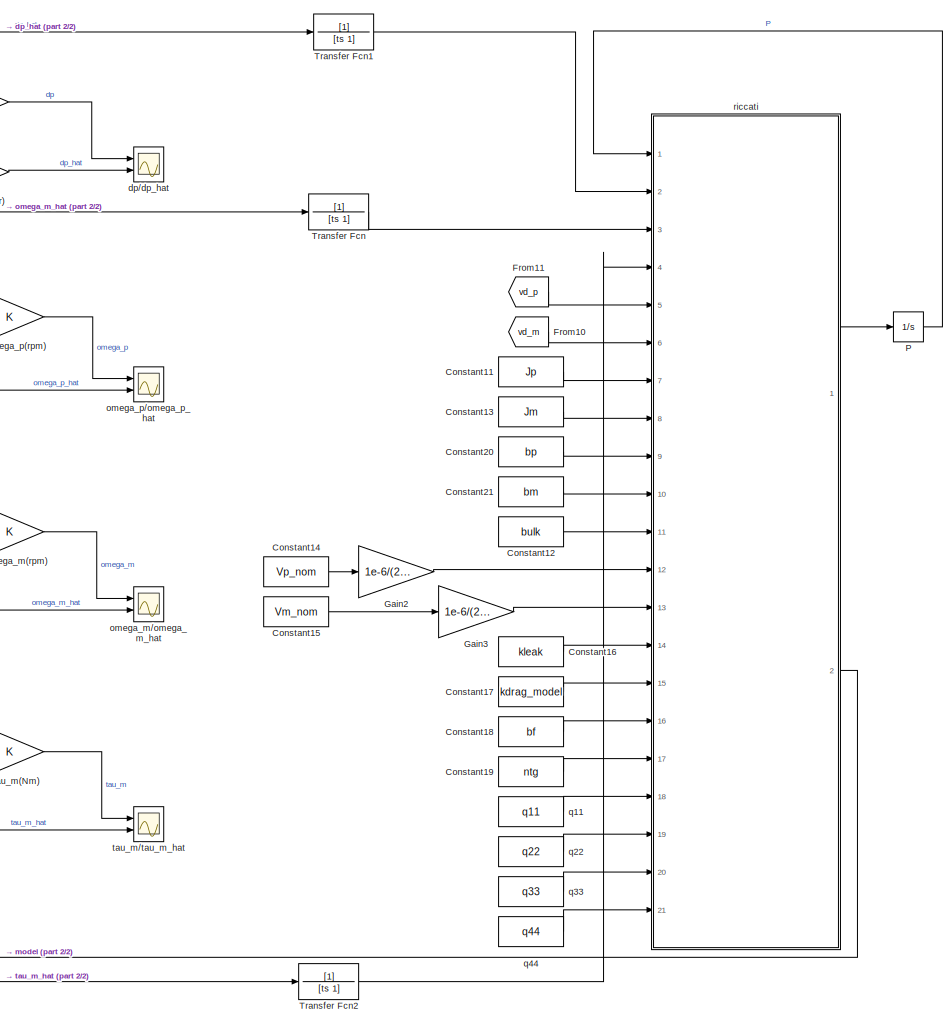
[diagram: motor_speed_control/EKF - part 1/2, right side, full height]
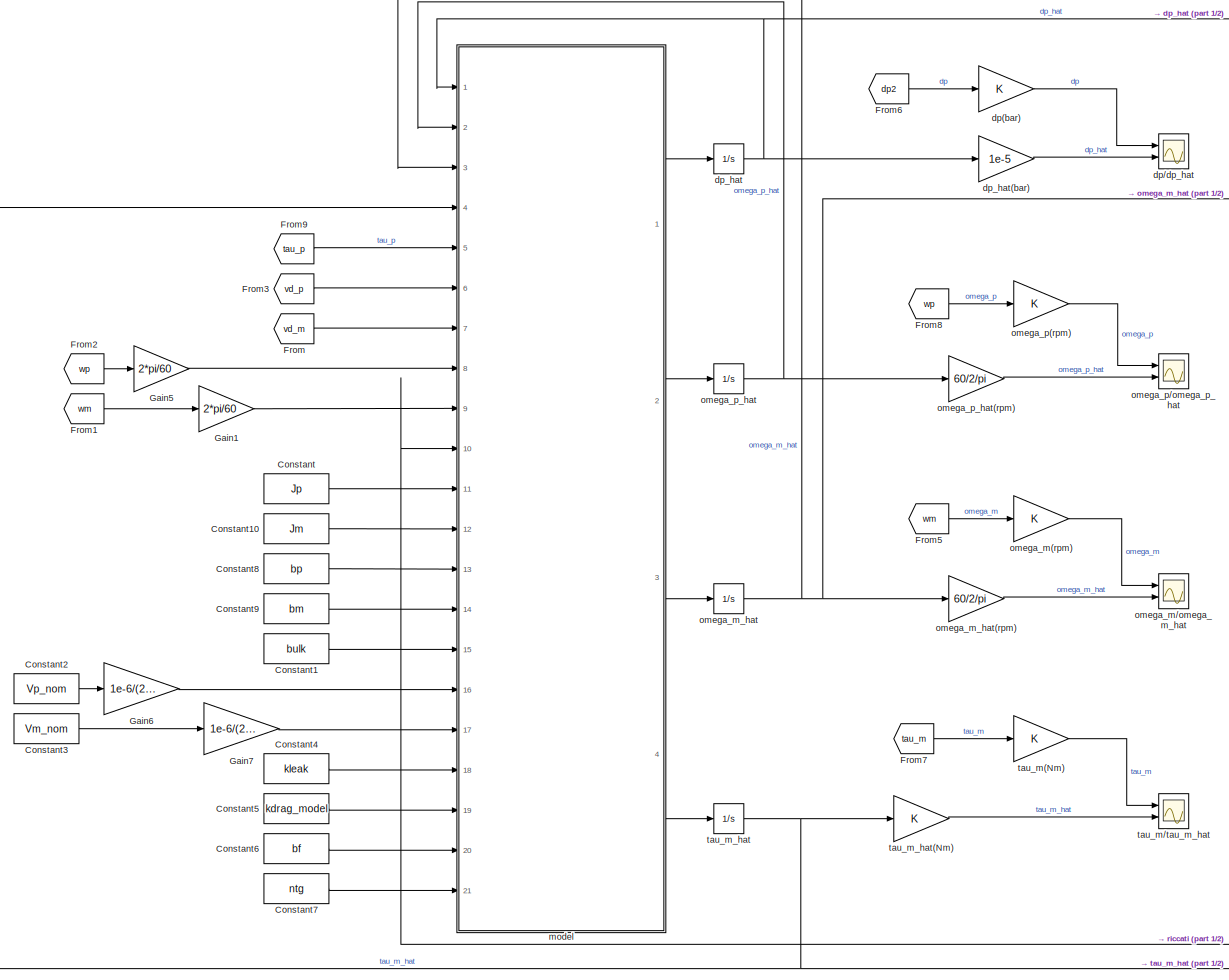
[diagram: motor_speed_control/EKF - part 2/2, left side, full height]
BLOCK [SubSystem] motor_speed_control/EKF
  Ports = []
  RequestExecContextInheritance = off
BLOCK [Constant] motor_speed_control/EKF/Constant
  Value = Jp
BLOCK [Constant] motor_speed_control/EKF/Constant1
  Value = bulk
BLOCK [Constant] motor_speed_control/EKF/Constant10
  Value = Jm
BLOCK [Constant] motor_speed_control/EKF/Constant11
  Value = Jp
BLOCK [Constant] motor_speed_control/EKF/Constant12
  Value = bulk
BLOCK [Constant] motor_speed_control/EKF/Constant13
  Value = Jm
BLOCK [Constant] motor_speed_control/EKF/Constant14
  Value = Vp_nom
BLOCK [Constant] motor_speed_control/EKF/Constant15
  Value = Vm_nom
BLOCK [Constant] motor_speed_control/EKF/Constant16
  Value = kleak
BLOCK [Constant] motor_speed_control/EKF/Constant17
  Value = kdrag_model
BLOCK [Constant] motor_speed_control/EKF/Constant18
  Value = bf
BLOCK [Constant] motor_speed_control/EKF/Constant19
  Value = ntg
BLOCK [Constant] motor_speed_control/EKF/Constant2
  Value = Vp_nom
BLOCK [Constant] motor_speed_control/EKF/Constant20
  Value = bp
BLOCK [Constant] motor_speed_control/EKF/Constant21
  Value = bm
BLOCK [Constant] motor_speed_control/EKF/Constant3
  Value = Vm_nom
BLOCK [Constant] motor_speed_control/EKF/Constant4
  Value = kleak
BLOCK [Constant] motor_speed_control/EKF/Constant5
  Value = kdrag_model
BLOCK [Constant] motor_speed_control/EKF/Constant6
  Value = bf
BLOCK [Constant] motor_speed_control/EKF/Constant7
  Value = ntg
BLOCK [Constant] motor_speed_control/EKF/Constant8
  Value = bp
BLOCK [Constant] motor_speed_control/EKF/Constant9
  Value = bm
BLOCK [From] motor_speed_control/EKF/From
  GotoTag = vd_m
  TagVisibility = global
BLOCK [From] motor_speed_control/EKF/From1
  GotoTag = wm
  TagVisibility = global
BLOCK [From] motor_speed_control/EKF/From10
  GotoTag = vd_m
  TagVisibility = global
BLOCK [From] motor_speed_control/EKF/From11
  GotoTag = vd_p
  TagVisibility = global
BLOCK [From] motor_speed_control/EKF/From2
  GotoTag = wp
  TagVisibility = global
BLOCK [From] motor_speed_control/EKF/From3
  GotoTag = vd_p
  TagVisibility = global
BLOCK [From] motor_speed_control/EKF/From5
  GotoTag = wm
  TagVisibility = global
BLOCK [From] motor_speed_control/EKF/From6
  GotoTag = dp2
  TagVisibility = global
BLOCK [From] motor_speed_control/EKF/From7
  GotoTag = tau_m
  TagVisibility = global
BLOCK [From] motor_speed_control/EKF/From8
  GotoTag = wp
  TagVisibility = global
BLOCK [From] motor_speed_control/EKF/From9
  GotoTag = tau_p
  TagVisibility = global
BLOCK [Gain] motor_speed_control/EKF/Gain1
  Gain = 2*pi/60
BLOCK [Gain] motor_speed_control/EKF/Gain2
  Gain = 1e-6/(2*pi)
BLOCK [Gain] motor_speed_control/EKF/Gain3
  Gain = 1e-6/(2*pi)
BLOCK [Gain] motor_speed_control/EKF/Gain5
  Gain = 2*pi/60
BLOCK [Gain] motor_speed_control/EKF/Gain6
  Gain = 1e-6/(2*pi)
BLOCK [Gain] motor_speed_control/EKF/Gain7
  Gain = 1e-6/(2*pi)
BLOCK [Integrator] motor_speed_control/EKF/P
  InitialCondition = P0
  NameLocation = top
  Ports = [1, 1]
BLOCK [TransferFcn] motor_speed_control/EKF/Transfer Fcn
  Denominator = [ts 1]
BLOCK [TransferFcn] motor_speed_control/EKF/Transfer Fcn1
  Denominator = [ts 1]
BLOCK [TransferFcn] motor_speed_control/EKF/Transfer Fcn2
  Denominator = [ts 1]
BLOCK [Gain] motor_speed_control/EKF/dp(bar)
BLOCK [Scope] motor_speed_control/EKF/dp//dp_hat
  Commented = on
  Floating = off
  NumInputPorts = 2
  Ports = [2]
  ScopeSpecificationString = Simulink.scopes.TimeScopeBlockCfg('CurrentConfiguration', extmgr.ConfigurationSet(extmgr.Configuration('Core','General UI',true),extmgr.Configuration('Core','Source UI',true),extmgr.Configuration('Sources','WiredSimulink',true,'DataLoggingVariableName','ScopeData8','SampleTime','ts'),extmgr.Configuration('Visuals','Time Domain',true,'SerializedDisplays',{struct('MinYLimReal','-371.43611','MaxYLimR...<+1678ch>
BLOCK [Integrator] motor_speed_control/EKF/dp_hat
  Ports = [1, 1]
BLOCK [Gain] motor_speed_control/EKF/dp_hat(bar)
  Gain = 1e-5
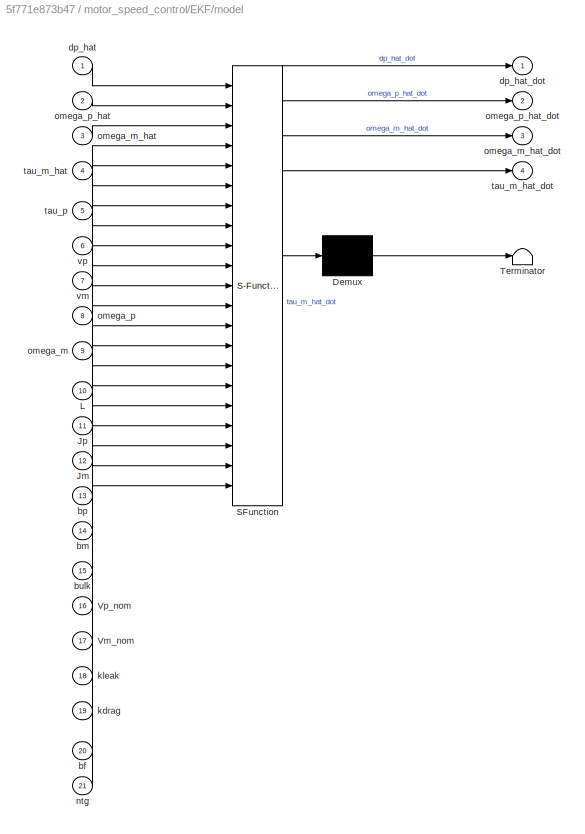
BLOCK [SubSystem] motor_speed_control/EKF/model
  ErrorFcn = Stateflow.Translate.translate
  PermitHierarchicalResolution = ExplicitOnly
  Ports = [21, 4]
  RequestExecContextInheritance = off
  SFBlockType = MATLAB Function
  TreatAsAtomicUnit = on
BLOCK [Demux] motor_speed_control/EKF/model/ Demux 
  Outputs = 1
  Ports = [1, 1]
BLOCK [S-Function] motor_speed_control/EKF/model/ SFunction 
  EnableBusSupport = on
  FunctionName = sf_sfun
  PortCounts = [21 5]
  Ports = [21, 5]
  SFcnIsStateOwnerBlock = off
  SFunctionDeploymentMode = off
  Tag = Stateflow S-Function 3
BLOCK [Terminator] motor_speed_control/EKF/model/ Terminator 
BLOCK [Inport] motor_speed_control/EKF/model/Jm
  Port = 12
BLOCK [Inport] motor_speed_control/EKF/model/Jp
  Port = 11
BLOCK [Inport] motor_speed_control/EKF/model/L
  Port = 10
BLOCK [Inport] motor_speed_control/EKF/model/Vm_nom
  Port = 17
BLOCK [Inport] motor_speed_control/EKF/model/Vp_nom
  Port = 16
BLOCK [Inport] motor_speed_control/EKF/model/bf
  Port = 20
BLOCK [Inport] motor_speed_control/EKF/model/bm
  Port = 14
BLOCK [Inport] motor_speed_control/EKF/model/bp
  Port = 13
BLOCK [Inport] motor_speed_control/EKF/model/bulk
  Port = 15
BLOCK [Inport] motor_speed_control/EKF/model/dp_hat
BLOCK [Outport] motor_speed_control/EKF/model/dp_hat_dot
BLOCK [Inport] motor_speed_control/EKF/model/kdrag
  Port = 19
BLOCK [Inport] motor_speed_control/EKF/model/kleak
  Port = 18
BLOCK [Inport] motor_speed_control/EKF/model/ntg
  Port = 21
BLOCK [Inport] motor_speed_control/EKF/model/omega_m
  Port = 9
BLOCK [Inport] motor_speed_control/EKF/model/omega_m_hat
  Port = 3
BLOCK [Outport] motor_speed_control/EKF/model/omega_m_hat_dot
  Port = 3
BLOCK [Inport] motor_speed_control/EKF/model/omega_p
  Port = 8
BLOCK [Inport] motor_speed_control/EKF/model/omega_p_hat
  Port = 2
BLOCK [Outport] motor_speed_control/EKF/model/omega_p_hat_dot
  Port = 2
BLOCK [Inport] motor_speed_control/EKF/model/tau_m_hat
  Port = 4
BLOCK [Outport] motor_speed_control/EKF/model/tau_m_hat_dot
  Port = 4
BLOCK [Inport] motor_speed_control/EKF/model/tau_p
  Port = 5
BLOCK [Inport] motor_speed_control/EKF/model/vm
  Port = 7
BLOCK [Inport] motor_speed_control/EKF/model/vp
  Port = 6
BLOCK [Gain] motor_speed_control/EKF/omega_m(rpm)
BLOCK [Scope] motor_speed_control/EKF/omega_m//omega_m_hat
  Commented = on
  Floating = off
  NumInputPorts = 2
  Ports = [2]
  ScopeSpecificationString = Simulink.scopes.TimeScopeBlockCfg('CurrentConfiguration', extmgr.ConfigurationSet(extmgr.Configuration('Core','General UI',true),extmgr.Configuration('Core','Source UI',true),extmgr.Configuration('Sources','WiredSimulink',true,'DataLoggingVariableName','ScopeData1','SampleTime','ts'),extmgr.Configuration('Visuals','Time Domain',true,'SerializedDisplays',{struct('MinYLimReal','-4001.29656','MaxYLim...<+1737ch>
BLOCK [Integrator] motor_speed_control/EKF/omega_m_hat
  Ports = [1, 1]
BLOCK [Gain] motor_speed_control/EKF/omega_m_hat(rpm)
  Gain = 60/2/pi
BLOCK [Gain] motor_speed_control/EKF/omega_p(rpm)
BLOCK [Scope] motor_speed_control/EKF/omega_p//omega_p_hat
  Commented = on
  Floating = off
  NumInputPorts = 2
  Ports = [2]
  ScopeSpecificationString = Simulink.scopes.TimeScopeBlockCfg('CurrentConfiguration', extmgr.ConfigurationSet(extmgr.Configuration('Core','General UI',true),extmgr.Configuration('Core','Source UI',true),extmgr.Configuration('Sources','WiredSimulink',true,'DataLoggingVariableName','ScopeData4','SampleTime','ts'),extmgr.Configuration('Visuals','Time Domain',true,'SerializedDisplays',{struct('MinYLimReal','-427.92439','MaxYLimR...<+1706ch>
BLOCK [Integrator] motor_speed_control/EKF/omega_p_hat
  Ports = [1, 1]
BLOCK [Gain] motor_speed_control/EKF/omega_p_hat(rpm)
  Gain = 60/2/pi
BLOCK [Constant] motor_speed_control/EKF/q11
  NameLocation = left
  Value = q11
BLOCK [Constant] motor_speed_control/EKF/q22
  NameLocation = left
  Value = q22
BLOCK [Constant] motor_speed_control/EKF/q33
  NameLocation = left
  Value = q33
BLOCK [Constant] motor_speed_control/EKF/q44
  NameLocation = left
  Value = q44
BLOCK [SubSystem] motor_speed_control/EKF/riccati
  ErrorFcn = Stateflow.Translate.translate
  PermitHierarchicalResolution = ExplicitOnly
  Ports = [21, 2]
  RequestExecContextInheritance = off
  SFBlockType = MATLAB Function
  TreatAsAtomicUnit = on
BLOCK [Demux] motor_speed_control/EKF/riccati/ Demux 
  Outputs = 1
  Ports = [1, 1]
BLOCK [S-Function] motor_speed_control/EKF/riccati/ SFunction 
  EnableBusSupport = on
  FunctionName = sf_sfun
  PortCounts = [21 3]
  Ports = [21, 3]
  SFcnIsStateOwnerBlock = off
  SFunctionDeploymentMode = off
  Tag = Stateflow S-Function 1
BLOCK [Terminator] motor_speed_control/EKF/riccati/ Terminator 
BLOCK [Inport] motor_speed_control/EKF/riccati/Jm
  Port = 8
BLOCK [Inport] motor_speed_control/EKF/riccati/Jp
  Port = 7
BLOCK [Outport] motor_speed_control/EKF/riccati/L
  Port = 2
BLOCK [Inport] motor_speed_control/EKF/riccati/P
BLOCK [Outport] motor_speed_control/EKF/riccati/Pdot
BLOCK [Inport] motor_speed_control/EKF/riccati/Vm_nom
  Port = 13
BLOCK [Inport] motor_speed_control/EKF/riccati/Vp_nom
  Port = 12
BLOCK [Inport] motor_speed_control/EKF/riccati/bf
  Port = 16
BLOCK [Inport] motor_speed_control/EKF/riccati/bm
  Port = 10
BLOCK [Inport] motor_speed_control/EKF/riccati/bp
  Port = 9
BLOCK [Inport] motor_speed_control/EKF/riccati/bulk
  Port = 11
BLOCK [Inport] motor_speed_control/EKF/riccati/dp_hat
  Port = 2
BLOCK [Inport] motor_speed_control/EKF/riccati/kdrag
  Port = 15
BLOCK [Inport] motor_speed_control/EKF/riccati/kleak
  Port = 14
BLOCK [Inport] motor_speed_control/EKF/riccati/ntg
  Port = 17
BLOCK [Inport] motor_speed_control/EKF/riccati/omega_m_hat
  Port = 3
BLOCK [Inport] motor_speed_control/EKF/riccati/q11
  Port = 18
BLOCK [Inport] motor_speed_control/EKF/riccati/q22
  Port = 19
BLOCK [Inport] motor_speed_control/EKF/riccati/q33
  Port = 20
BLOCK [Inport] motor_speed_control/EKF/riccati/q44
  Port = 21
BLOCK [Inport] motor_speed_control/EKF/riccati/tau_m_hat
  Port = 4
BLOCK [Inport] motor_speed_control/EKF/riccati/vm
  Port = 6
BLOCK [Inport] motor_speed_control/EKF/riccati/vp
  Port = 5
BLOCK [Gain] motor_speed_control/EKF/tau_m(Nm)
BLOCK [Scope] motor_speed_control/EKF/tau_m//tau_m_hat
  Commented = on
  Floating = off
  NumInputPorts = 2
  Ports = [2]
  ScopeSpecificationString = Simulink.scopes.TimeScopeBlockCfg('CurrentConfiguration', extmgr.ConfigurationSet(extmgr.Configuration('Core','General UI',true),extmgr.Configuration('Core','Source UI',true),extmgr.Configuration('Sources','WiredSimulink',true,'DataLoggingVariableName','ScopeData3','SampleTime','ts'),extmgr.Configuration('Visuals','Time Domain',true,'SerializedDisplays',{struct('MinYLimReal','-1519.71407','MaxYLim...<+1733ch>
BLOCK [Integrator] motor_speed_control/EKF/tau_m_hat
  Ports = [1, 1]
BLOCK [Gain] motor_speed_control/EKF/tau_m_hat(Nm)
BLOCK [Goto] motor_speed_control/Goto
  GotoTag = vd_p
  TagVisibility = global
BLOCK [Goto] motor_speed_control/Goto1
  GotoTag = vd_m
  TagVisibility = global
BLOCK [Goto] motor_speed_control/Goto2
  GotoTag = wp
  TagVisibility = global
BLOCK [Goto] motor_speed_control/Goto3
  GotoTag = wm
  TagVisibility = global
BLOCK [Goto] motor_speed_control/Goto4
  GotoTag = tau_p
  TagVisibility = global
BLOCK [Goto] motor_speed_control/Goto5
  GotoTag = tau_m
  TagVisibility = global
BLOCK [RateLimiter] motor_speed_control/Rate Limiter
  FallingSlewLimit = -max_domega_m_dt
  RisingSlewLimit = max_domega_m_dt
  SampleTimeMode = inherited
BLOCK [Sum] motor_speed_control/Sum4
  Inputs = |+-
  Ports = [2, 1]
BLOCK [Sum] motor_speed_control/Sum6
  Inputs = +-|
  NameLocation = top
  Ports = [2, 1]
BLOCK [TransferFcn] motor_speed_control/Transfer Fcn
BLOCK [Gain] motor_speed_control/cmd motor displacement
BLOCK [Gain] motor_speed_control/cmd pump displacement
BLOCK [Gain] motor_speed_control/motor speed  pu
  Gain = 1/omega_m_nom_rpm
BLOCK [Gain] motor_speed_control/motor speed ref pu
  Gain = 1/omega_m_nom_rpm
BLOCK [Inport] motor_speed_control/motor_speed_(rpm)
  Port = 2
BLOCK [Inport] motor_speed_control/motor_speed_ref_(rpm)
BLOCK [Inport] motor_speed_control/motor_torque(Nm)
  Port = 5
BLOCK [SubSystem] motor_speed_control/pi-ctrl
  Ports = [2, 1]
  RequestExecContextInheritance = off
BLOCK [Gain] motor_speed_control/pi-ctrl/1//Ti
  Gain = kp
  OutDataTypeStr = Inherit: Same as input
  ParamDataTypeStr = Inherit: Same as input
  SaturateOnIntegerOverflow = on
BLOCK [Saturate] motor_speed_control/pi-ctrl/Saturation
  LowerLimit = sat_neg
  UpperLimit = sat_pos
BLOCK [Sum] motor_speed_control/pi-ctrl/Sum1
  IconShape = rectangular
  Inputs = +++
  Ports = [3, 1]
  SaturateOnIntegerOverflow = on
BLOCK [Sum] motor_speed_control/pi-ctrl/Sum2
  IconShape = rectangular
  Inputs = -+
  Ports = [2, 1]
  SaturateOnIntegerOverflow = on
BLOCK [Sum] motor_speed_control/pi-ctrl/Sum3
  IconShape = rectangular
  Inputs = -+
  NameLocation = top
  Ports = [2, 1]
  SaturateOnIntegerOverflow = on
BLOCK [UnitDelay] motor_speed_control/pi-ctrl/Unit Delay1
  HasFrameUpgradeWarning = on
  SampleTime = ts
BLOCK [UnitDelay] motor_speed_control/pi-ctrl/Unit Delay2
  HasFrameUpgradeWarning = on
  SampleTime = ts
BLOCK [UnitDelay] motor_speed_control/pi-ctrl/Unit Delay4
  HasFrameUpgradeWarning = on
  SampleTime = ts
BLOCK [Gain] motor_speed_control/pi-ctrl/kp
  Gain = ki*ts
  OutDataTypeStr = Inherit: Same as input
  ParamDataTypeStr = Inherit: Same as input
  SaturateOnIntegerOverflow = on
BLOCK [Outport] motor_speed_control/pi-ctrl/u
BLOCK [Inport] motor_speed_control/pi-ctrl/x
BLOCK [Inport] motor_speed_control/pi-ctrl/xref
  Port = 2
BLOCK [Inport] motor_speed_control/pump_speed(rpm)
  Port = 3
BLOCK [Inport] motor_speed_control/pump_torque(Nm)
  Port = 4
BLOCK [Scope] motor_speed_control/ref_speed_pu//speed_pu
  Commented = on
  Floating = off
  NumInputPorts = 2
  Ports = [2]
  ScopeSpecificationString = Simulink.scopes.TimeScopeBlockCfg('CurrentConfiguration', extmgr.ConfigurationSet(extmgr.Configuration('Core','General UI',true),extmgr.Configuration('Core','Source UI',true),extmgr.Configuration('Sources','WiredSimulink',true,'DataLoggingVariableName','ScopeData1','SampleTime','ts'),extmgr.Configuration('Visuals','Time Domain',true,'SerializedDisplays',{struct('MinYLimReal','-0.76854','MaxYLimRea...<+1645ch>
BLOCK [Saturate] motor_speed_control/vdm_lim
  LowerLimit = 0.36
  UpperLimit = 1
BLOCK [Constant] motor_speed_control/vdm_max
BLOCK [Saturate] motor_speed_control/vdp_lim
  LowerLimit = -1
  NameLocation = top
  UpperLimit = 1
BLOCK [Gain] omega_m_ref
  Gain = omega_m_ref
BLOCK [SubSystem] transmission_grear
  Ports = [0, 2, 0, 0, 0, 1, 1]
  RequestExecContextInheritance = off
BLOCK [Constant] transmission_grear/Constant
  Value = bd
BLOCK [Constant] transmission_grear/Constant1
  Value = bf
BLOCK [PMIOPort] transmission_grear/driver
  Port = 2
  Side = Left
BLOCK [PMIOPort] transmission_grear/follower
  Side = Right
BLOCK [Reference] transmission_grear/gear with input viscosity  REF=gear2_lib/gear with input
viscosity
  Ports = [0, 0, 0, 0, 0, 3, 5]
  SourceBlock = gear2_lib/gear with input\nviscosity
  SourceType = gear with input\nviscosity
BLOCK [Scope] transmission_grear/gear_transmission_rotational_speed
  Commented = on
  Floating = off
  NumInputPorts = 2
  Ports = [2]
  ScopeSpecificationString = Simulink.scopes.TimeScopeBlockCfg('CurrentConfiguration', extmgr.ConfigurationSet(extmgr.Configuration('Core','General UI',true),extmgr.Configuration('Core','Source UI',true),extmgr.Configuration('Sources','WiredSimulink',true,'SampleTime','ts','DataLoggingVariableName','ScopeData2'),extmgr.Configuration('Visuals','Time Domain',true,'SerializedDisplays',{struct('MinYLimReal','-4000.35737','MaxYLim...<+2547ch>
BLOCK [Reference] transmission_grear/omega_d  REF=nesl_utility/PS-Simulink
Converter
  Ports = [0, 1, 0, 0, 0, 1]
  SourceBlock = nesl_utility/PS-Simulink\nConverter
  SourceProductBaseCode = PW,SS
  SourceType = PS-Simulink\nConverter
BLOCK [Reference] transmission_grear/omega_f  REF=nesl_utility/PS-Simulink
Converter
  Ports = [0, 1, 0, 0, 0, 1]
  SourceBlock = nesl_utility/PS-Simulink\nConverter
  SourceProductBaseCode = PW,SS
  SourceType = PS-Simulink\nConverter
BLOCK [Outport] transmission_grear/omega_wheel(rpm)
BLOCK [Reference] transmission_grear/tau_m  REF=nesl_utility/PS-Simulink
Converter
  Ports = [0, 1, 0, 0, 0, 1]
  SourceBlock = nesl_utility/PS-Simulink\nConverter
  SourceProductBaseCode = PW,SS
  SourceType = PS-Simulink\nConverter
BLOCK [Outport] transmission_grear/tau_m(Nm)
  Port = 2
BLOCK [Reference] transmission_grear/viscosity_driver_gear  REF=nesl_utility/Simulink-PS
Converter
  Ports = [1, 0, 0, 0, 0, 0, 1]
  SourceBlock = nesl_utility/Simulink-PS\nConverter
  SourceProductBaseCode = PW,SS
  SourceType = Simulink-PS\nConverter
BLOCK [Reference] transmission_grear/viscosity_follower_gear  REF=nesl_utility/Simulink-PS
Converter
  Ports = [1, 0, 0, 0, 0, 0, 1]
  SourceBlock = nesl_utility/Simulink-PS\nConverter
  SourceProductBaseCode = PW,SS
  SourceType = Simulink-PS\nConverter
BLOCK [SubSystem] transmission_shaft
  Ports = [0, 2, 0, 0, 0, 1, 1]
  RequestExecContextInheritance = off
BLOCK [Gain] transmission_shaft/dir
  Gain = -1
BLOCK [Reference] transmission_shaft/flexible shaft  REF=flexshaft_lib/flexible shaft
  Ports = [0, 0, 0, 0, 0, 1, 3]
  SourceBlock = flexshaft_lib/flexible shaft
  SourceType = flexible shaft
BLOCK [Reference] transmission_shaft/load_speed(rpm)  REF=nesl_utility/PS-Simulink
Converter
  Ports = [0, 1, 0, 0, 0, 1]
  SourceBlock = nesl_utility/PS-Simulink\nConverter
  SourceProductBaseCode = PW,SS
  SourceType = PS-Simulink\nConverter
BLOCK [Reference] transmission_shaft/load_torque(Nm)  REF=nesl_utility/PS-Simulink
Converter
  Ports = [0, 1, 0, 0, 0, 1]
  SourceBlock = nesl_utility/PS-Simulink\nConverter
  SourceProductBaseCode = PW,SS
  SourceType = PS-Simulink\nConverter
BLOCK [Outport] transmission_shaft/tau_p(Nm)
  Port = 2
BLOCK [PMIOPort] transmission_shaft/w1
  Side = Left
BLOCK [PMIOPort] transmission_shaft/w2
  Port = 2
  Side = Right
BLOCK [Outport] transmission_shaft/wp(rpm)
ANNOTATION motor_speed_control: d/dt vd is bounded
LINE Engine:1 -> engine_data:1
LINE Repeating Sequence/Constant1:1 -> Repeating Sequence/Switch:3
LINE Repeating Sequence/Constant2:1 -> Repeating Sequence/Switch1:3
LINE Repeating Sequence/Constant3:1 -> Repeating Sequence/Switch1:1
LINE Repeating Sequence/Constant4:1 -> Repeating Sequence/Discrete-Time Integrator:1
LINE Repeating Sequence/Constant:1 -> Repeating Sequence/Switch:1
NET Repeating Sequence/Discrete-Time Integrator:1 -> Repeating Sequence/Switch1:2, Repeating Sequence/Switch:2
LINE Repeating Sequence/Switch1:1 -> Repeating Sequence/Unit Delay:1
LINE Repeating Sequence/Switch:1 -> Repeating Sequence/out:1
LINE Repeating Sequence/Unit Delay:1 -> Repeating Sequence/Discrete-Time Integrator:2
LINE Repeating Sequence:1 -> omega_m_ref:1
LINE engine_speed_ref(rpm):1 -> Engine:1
LINE hydrostatic_transmission/dp1(bar):1 -> hydrostatic_transmission/Terminator1:1
NET hydrostatic_transmission/dp2(bar):1 -> hydrostatic_transmission/Goto:1, hydrostatic_transmission/Terminator3:1
LINE hydrostatic_transmission/hydro_driveline1/From2:1 -> hydrostatic_transmission/hydro_driveline1/vd_ctrl_pump:1
LINE hydrostatic_transmission/hydro_driveline1/From:1 -> hydrostatic_transmission/hydro_driveline1/vd_ctrl_motor:1
LINE hydrostatic_transmission/hydro_driveline1/charge_system/pCharge(bar):1 -> hydrostatic_transmission/hydro_driveline1/charge_system/Terminator2:1
LINE hydrostatic_transmission/hydro_driveline1/charge_system/qcharge(l//min):1 -> hydrostatic_transmission/hydro_driveline1/charge_system/Terminator1:1
LINE hydrostatic_transmission/hydro_driveline1/charge_system/qt_ishuttle(l//min):1 -> hydrostatic_transmission/hydro_driveline1/charge_system/Terminator:1
LINE hydrostatic_transmission/hydro_driveline1/dp(bar):1 -> hydrostatic_transmission/hydro_driveline1/Terminator2:1
LINE hydrostatic_transmission/hydro_driveline1/q(l//min):1 -> hydrostatic_transmission/hydro_driveline1/Terminator1:1
LINE hydrostatic_transmission/hydro_driveline1/vd_ctrl_motor/vd_ref:1 -> hydrostatic_transmission/hydro_driveline1/vd_ctrl_motor/Simulink-PS Converter3:1
LINE hydrostatic_transmission/hydro_driveline1/vd_ctrl_pump/vd_ref:1 -> hydrostatic_transmission/hydro_driveline1/vd_ctrl_pump/Simulink-PS Converter3:1
LINE hydrostatic_transmission/hydro_driveline2/From2:1 -> hydrostatic_transmission/hydro_driveline2/vd_ctrl_pump:1
LINE hydrostatic_transmission/hydro_driveline2/From:1 -> hydrostatic_transmission/hydro_driveline2/vd_ctrl_motor:1
LINE hydrostatic_transmission/hydro_driveline2/dp(bar):1 -> hydrostatic_transmission/hydro_driveline2/Terminator:1
LINE hydrostatic_transmission/hydro_driveline2/q(l//min):1 -> hydrostatic_transmission/hydro_driveline2/Terminator1:1
LINE hydrostatic_transmission/hydro_driveline2/vd_ctrl_motor/vd_ref:1 -> hydrostatic_transmission/hydro_driveline2/vd_ctrl_motor/Simulink-PS Converter3:1
LINE hydrostatic_transmission/hydro_driveline2/vd_ctrl_pump/vd_ref:1 -> hydrostatic_transmission/hydro_driveline2/vd_ctrl_pump/Simulink-PS Converter3:1
LINE hydrostatic_transmission/q1(l//min):1 -> hydrostatic_transmission/Terminator2:1
LINE hydrostatic_transmission/q2(l//min):1 -> hydrostatic_transmission/Terminator4:1
LINE ki_engine:1 -> Engine:3
LINE kp_engine:1 -> Engine:2
LINE load/kdrag:1 -> load/kdrag_converter:1
LINE motor_speed_control/Abs1:1 -> motor_speed_control/Sum4:2
LINE motor_speed_control/Abs:1 -> motor_speed_control/Sum4:1
LINE motor_speed_control/EKF/Constant10:1 -> motor_speed_control/EKF/model:12
LINE motor_speed_control/EKF/Constant11:1 -> motor_speed_control/EKF/riccati:7
LINE motor_speed_control/EKF/Constant12:1 -> motor_speed_control/EKF/riccati:11
LINE motor_speed_control/EKF/Constant13:1 -> motor_speed_control/EKF/riccati:8
LINE motor_speed_control/EKF/Constant14:1 -> motor_speed_control/EKF/Gain2:1
LINE motor_speed_control/EKF/Constant15:1 -> motor_speed_control/EKF/Gain3:1
LINE motor_speed_control/EKF/Constant16:1 -> motor_speed_control/EKF/riccati:14
LINE motor_speed_control/EKF/Constant17:1 -> motor_speed_control/EKF/riccati:15
LINE motor_speed_control/EKF/Constant18:1 -> motor_speed_control/EKF/riccati:16
LINE motor_speed_control/EKF/Constant19:1 -> motor_speed_control/EKF/riccati:17
LINE motor_speed_control/EKF/Constant1:1 -> motor_speed_control/EKF/model:15
LINE motor_speed_control/EKF/Constant20:1 -> motor_speed_control/EKF/riccati:9
LINE motor_speed_control/EKF/Constant21:1 -> motor_speed_control/EKF/riccati:10
LINE motor_speed_control/EKF/Constant2:1 -> motor_speed_control/EKF/Gain6:1
LINE motor_speed_control/EKF/Constant3:1 -> motor_speed_control/EKF/Gain7:1
LINE motor_speed_control/EKF/Constant4:1 -> motor_speed_control/EKF/model:18
LINE motor_speed_control/EKF/Constant5:1 -> motor_speed_control/EKF/model:19
LINE motor_speed_control/EKF/Constant6:1 -> motor_speed_control/EKF/model:20
LINE motor_speed_control/EKF/Constant7:1 -> motor_speed_control/EKF/model:21
LINE motor_speed_control/EKF/Constant8:1 -> motor_speed_control/EKF/model:13
LINE motor_speed_control/EKF/Constant9:1 -> motor_speed_control/EKF/model:14
LINE motor_speed_control/EKF/Constant:1 -> motor_speed_control/EKF/model:11
LINE motor_speed_control/EKF/From10:1 -> motor_speed_control/EKF/riccati:6
LINE motor_speed_control/EKF/From11:1 -> motor_speed_control/EKF/riccati:5
LINE motor_speed_control/EKF/From1:1 -> motor_speed_control/EKF/Gain1:1
LINE motor_speed_control/EKF/From2:1 -> motor_speed_control/EKF/Gain5:1
LINE motor_speed_control/EKF/From3:1 -> motor_speed_control/EKF/model:6
LINE motor_speed_control/EKF/From5:1 -> motor_speed_control/EKF/omega_m(rpm):1
LINE motor_speed_control/EKF/From6:1 -> motor_speed_control/EKF/dp(bar):1
LINE motor_speed_control/EKF/From7:1 -> motor_speed_control/EKF/tau_m(Nm):1
LINE motor_speed_control/EKF/From8:1 -> motor_speed_control/EKF/omega_p(rpm):1
LINE motor_speed_control/EKF/From9:1 -> motor_speed_control/EKF/model:5
LINE motor_speed_control/EKF/From:1 -> motor_speed_control/EKF/model:7
LINE motor_speed_control/EKF/Gain1:1 -> motor_speed_control/EKF/model:9
LINE motor_speed_control/EKF/Gain2:1 -> motor_speed_control/EKF/riccati:12
LINE motor_speed_control/EKF/Gain3:1 -> motor_speed_control/EKF/riccati:13
LINE motor_speed_control/EKF/Gain5:1 -> motor_speed_control/EKF/model:8
LINE motor_speed_control/EKF/Gain6:1 -> motor_speed_control/EKF/model:16
LINE motor_speed_control/EKF/Gain7:1 -> motor_speed_control/EKF/model:17
LINE motor_speed_control/EKF/P:1 -> motor_speed_control/EKF/riccati:1
LINE motor_speed_control/EKF/Transfer Fcn1:1 -> motor_speed_control/EKF/riccati:2
LINE motor_speed_control/EKF/Transfer Fcn2:1 -> motor_speed_control/EKF/riccati:4
LINE motor_speed_control/EKF/Transfer Fcn:1 -> motor_speed_control/EKF/riccati:3
LINE motor_speed_control/EKF/dp(bar):1 -> motor_speed_control/EKF/dp//dp_hat:1
LINE motor_speed_control/EKF/dp_hat(bar):1 -> motor_speed_control/EKF/dp//dp_hat:2
NET motor_speed_control/EKF/dp_hat:1 -> motor_speed_control/EKF/Transfer Fcn1:1, motor_speed_control/EKF/dp_hat(bar):1, motor_speed_control/EKF/model:1
LINE motor_speed_control/EKF/model:1 -> motor_speed_control/EKF/dp_hat:1
LINE motor_speed_control/EKF/model:2 -> motor_speed_control/EKF/omega_p_hat:1
LINE motor_speed_control/EKF/model:3 -> motor_speed_control/EKF/omega_m_hat:1
LINE motor_speed_control/EKF/model:4 -> motor_speed_control/EKF/tau_m_hat:1
LINE motor_speed_control/EKF/omega_m(rpm):1 -> motor_speed_control/EKF/omega_m//omega_m_hat:1
LINE motor_speed_control/EKF/omega_m_hat(rpm):1 -> motor_speed_control/EKF/omega_m//omega_m_hat:2
NET motor_speed_control/EKF/omega_m_hat:1 -> motor_speed_control/EKF/Transfer Fcn:1, motor_speed_control/EKF/model:3, motor_speed_control/EKF/omega_m_hat(rpm):1
LINE motor_speed_control/EKF/omega_p(rpm):1 -> motor_speed_control/EKF/omega_p//omega_p_hat:1
LINE motor_speed_control/EKF/omega_p_hat(rpm):1 -> motor_speed_control/EKF/omega_p//omega_p_hat:2
NET motor_speed_control/EKF/omega_p_hat:1 -> motor_speed_control/EKF/model:2, motor_speed_control/EKF/omega_p_hat(rpm):1
LINE motor_speed_control/EKF/q11:1 -> motor_speed_control/EKF/riccati:18
LINE motor_speed_control/EKF/q22:1 -> motor_speed_control/EKF/riccati:19
LINE motor_speed_control/EKF/q33:1 -> motor_speed_control/EKF/riccati:20
LINE motor_speed_control/EKF/q44:1 -> motor_speed_control/EKF/riccati:21
LINE motor_speed_control/EKF/riccati:1 -> motor_speed_control/EKF/P:1
LINE motor_speed_control/EKF/riccati:2 -> motor_speed_control/EKF/model:10
LINE motor_speed_control/EKF/tau_m(Nm):1 -> motor_speed_control/EKF/tau_m//tau_m_hat:1
LINE motor_speed_control/EKF/tau_m_hat(Nm):1 -> motor_speed_control/EKF/tau_m//tau_m_hat:2
NET motor_speed_control/EKF/tau_m_hat:1 -> motor_speed_control/EKF/Transfer Fcn2:1, motor_speed_control/EKF/model:4, motor_speed_control/EKF/tau_m_hat(Nm):1
LINE motor_speed_control/Rate Limiter:1 -> motor_speed_control/Transfer Fcn:1
LINE motor_speed_control/Sum4:1 -> motor_speed_control/Sum6:2
LINE motor_speed_control/Sum6:1 -> motor_speed_control/vdm_lim:1
LINE motor_speed_control/Transfer Fcn:1 -> motor_speed_control/motor speed ref pu:1
LINE motor_speed_control/cmd motor displacement:1 -> motor_speed_control/Goto1:1
LINE motor_speed_control/cmd pump displacement:1 -> motor_speed_control/Goto:1
NET motor_speed_control/motor speed  pu:1 -> motor_speed_control/pi-ctrl:1, motor_speed_control/ref_speed_pu//speed_pu:2
NET motor_speed_control/motor speed ref pu:1 -> motor_speed_control/pi-ctrl:2, motor_speed_control/ref_speed_pu//speed_pu:1
NET motor_speed_control/motor_speed_(rpm):1 -> motor_speed_control/Goto3:1, motor_speed_control/motor speed  pu:1
LINE motor_speed_control/motor_speed_ref_(rpm):1 -> motor_speed_control/Rate Limiter:1
LINE motor_speed_control/motor_torque(Nm):1 -> motor_speed_control/Goto5:1
NET motor_speed_control/pi-ctrl/1//Ti:1 -> motor_speed_control/pi-ctrl/Sum1:1, motor_speed_control/pi-ctrl/Sum3:1
NET motor_speed_control/pi-ctrl/Saturation:1 -> motor_speed_control/pi-ctrl/Sum3:2, motor_speed_control/pi-ctrl/u:1
LINE motor_speed_control/pi-ctrl/Sum1:1 -> motor_speed_control/pi-ctrl/Saturation:1
NET motor_speed_control/pi-ctrl/Sum2:1 -> motor_speed_control/pi-ctrl/1//Ti:1, motor_speed_control/pi-ctrl/kp:1
LINE motor_speed_control/pi-ctrl/Sum3:1 -> motor_speed_control/pi-ctrl/Unit Delay4:1
LINE motor_speed_control/pi-ctrl/Unit Delay1:1 -> motor_speed_control/pi-ctrl/Sum2:1
LINE motor_speed_control/pi-ctrl/Unit Delay2:1 -> motor_speed_control/pi-ctrl/Sum2:2
LINE motor_speed_control/pi-ctrl/Unit Delay4:1 -> motor_speed_control/pi-ctrl/Sum1:3
LINE motor_speed_control/pi-ctrl/kp:1 -> motor_speed_control/pi-ctrl/Sum1:2
LINE motor_speed_control/pi-ctrl/x:1 -> motor_speed_control/pi-ctrl/Unit Delay1:1
LINE motor_speed_control/pi-ctrl/xref:1 -> motor_speed_control/pi-ctrl/Unit Delay2:1
NET motor_speed_control/pi-ctrl:1 -> motor_speed_control/Abs:1, motor_speed_control/vdp_lim:1
LINE motor_speed_control/pump_speed(rpm):1 -> motor_speed_control/Goto2:1
LINE motor_speed_control/pump_torque(Nm):1 -> motor_speed_control/Goto4:1
LINE motor_speed_control/vdm_lim:1 -> motor_speed_control/cmd motor displacement:1
LINE motor_speed_control/vdm_max:1 -> motor_speed_control/Sum6:1
NET motor_speed_control/vdp_lim:1 -> motor_speed_control/Abs1:1, motor_speed_control/cmd pump displacement:1
LINE omega_m_ref:1 -> motor_speed_control:1
LINE transmission_grear/Constant1:1 -> transmission_grear/viscosity_follower_gear:1
LINE transmission_grear/Constant:1 -> transmission_grear/viscosity_driver_gear:1
NET transmission_grear/omega_d:1 -> transmission_grear/gear_transmission_rotational_speed:1, transmission_grear/omega_wheel(rpm):1
LINE transmission_grear/omega_f:1 -> transmission_grear/gear_transmission_rotational_speed:2
LINE transmission_grear/tau_m:1 -> transmission_grear/tau_m(Nm):1
LINE transmission_grear:1 -> motor_speed_control:2
LINE transmission_grear:2 -> motor_speed_control:5
LINE transmission_shaft/dir:1 -> transmission_shaft/tau_p(Nm):1
LINE transmission_shaft/load_speed(rpm):1 -> transmission_shaft/wp(rpm):1
LINE transmission_shaft/load_torque(Nm):1 -> transmission_shaft/dir:1
LINE transmission_shaft:1 -> motor_speed_control:3
LINE transmission_shaft:2 -> motor_speed_control:4
PLINE Engine:RConn1 -- transmission_shaft:LConn1
PLINE hydrostatic_transmission/dp1(bar):LConn1 -- hydrostatic_transmission/hydro_driveline1:RConn2
PLINE hydrostatic_transmission/dp2(bar):LConn1 -- hydrostatic_transmission/hydro_driveline2:RConn2
PNET net1: hydrostatic_transmission/hydro_driveline1/Hydraulic Flow Rate Sensor:LConn1 -- hydrostatic_transmission/hydro_driveline1/Variable displacement pump 2:RConn1 -- hydrostatic_transmission/hydro_driveline1/charge_system:LConn1 -- hydrostatic_transmission/hydro_driveline1/hydroA:RConn1
PLINE hydrostatic_transmission/hydro_driveline1/Hydraulic Flow Rate Sensor:RConn1 -- hydrostatic_transmission/hydro_driveline1/q(l//min):LConn1
PNET net2: hydrostatic_transmission/hydro_driveline1/Hydraulic Flow Rate Sensor:RConn2 -- hydrostatic_transmission/hydro_driveline1/Hydraulic Pressure Sensor:LConn1 -- hydrostatic_transmission/hydro_driveline1/Variable displacement motor 2:LConn2
PNET net3: hydrostatic_transmission/hydro_driveline1/Hydraulic Pressure Sensor:RConn1 -- hydrostatic_transmission/hydro_driveline1/Variable displacement motor 2:LConn3 -- hydrostatic_transmission/hydro_driveline1/Variable displacement pump 2:RConn2 -- hydrostatic_transmission/hydro_driveline1/charge_system:RConn1 -- hydrostatic_transmission/hydro_driveline1/hydroB:RConn1
PLINE hydrostatic_transmission/hydro_driveline1/Hydraulic Pressure Sensor:RConn2 -- hydrostatic_transmission/hydro_driveline1/dp(bar):LConn1
PLINE hydrostatic_transmission/hydro_driveline1/Variable displacement motor 2:LConn1 -- hydrostatic_transmission/hydro_driveline1/vd_ctrl_motor:RConn1
PLINE hydrostatic_transmission/hydro_driveline1/Variable displacement motor 2:RConn1 -- hydrostatic_transmission/hydro_driveline1/c:RConn1
PLINE hydrostatic_transmission/hydro_driveline1/Variable displacement motor 2:RConn2 -- hydrostatic_transmission/hydro_driveline1/q:RConn1
PLINE hydrostatic_transmission/hydro_driveline1/Variable displacement motor 2:RConn3 -- hydrostatic_transmission/hydro_driveline1/dp:RConn1
PLINE hydrostatic_transmission/hydro_driveline1/Variable displacement pump 2:LConn1 -- hydrostatic_transmission/hydro_driveline1/vd_ctrl_pump:RConn1
PNET net4: hydrostatic_transmission/hydro_driveline1/Variable displacement pump 2:LConn2 -- hydrostatic_transmission/hydro_driveline1/charge_system:RConn2 -- hydrostatic_transmission/hydro_driveline1/s:RConn1
PNET net5: hydrostatic_transmission/hydro_driveline1/charge_system/A:RConn1 -- hydrostatic_transmission/hydro_driveline1/charge_system/hydro_check_valve1:RConn1 -- hydrostatic_transmission/hydro_driveline1/charge_system/inverse shuttle valve:LConn1
PNET net6: hydrostatic_transmission/hydro_driveline1/charge_system/B:RConn1 -- hydrostatic_transmission/hydro_driveline1/charge_system/hydro_check_valve2:RConn1 -- hydrostatic_transmission/hydro_driveline1/charge_system/inverse shuttle valve:LConn2
PLINE hydrostatic_transmission/hydro_driveline1/charge_system/D:RConn1 -- hydrostatic_transmission/hydro_driveline1/charge_system/Subsystem:LConn1
PLINE hydrostatic_transmission/hydro_driveline1/charge_system/Hydraulic Flow Rate Sensor1:LConn1 -- hydrostatic_transmission/hydro_driveline1/charge_system/inverse shuttle valve:RConn1
PLINE hydrostatic_transmission/hydro_driveline1/charge_system/Hydraulic Flow Rate Sensor1:RConn1 -- hydrostatic_transmission/hydro_driveline1/charge_system/qt_ishuttle(l//min):LConn1
PLINE hydrostatic_transmission/hydro_driveline1/charge_system/Hydraulic Flow Rate Sensor1:RConn2 -- hydrostatic_transmission/hydro_driveline1/charge_system/Hydraulic Reference3:LConn1
PNET net7: hydrostatic_transmission/hydro_driveline1/charge_system/Hydraulic Flow Rate Sensor:LConn1 -- hydrostatic_transmission/hydro_driveline1/charge_system/Hydraulic Pressure Sensor3:LConn1 -- hydrostatic_transmission/hydro_driveline1/charge_system/Subsystem:RConn1
PLINE hydrostatic_transmission/hydro_driveline1/charge_system/Hydraulic Flow Rate Sensor:RConn1 -- hydrostatic_transmission/hydro_driveline1/charge_system/qcharge(l//min):LConn1
PNET net8: hydrostatic_transmission/hydro_driveline1/charge_system/Hydraulic Flow Rate Sensor:RConn2 -- hydrostatic_transmission/hydro_driveline1/charge_system/hydro_check_valve1:LConn1 -- hydrostatic_transmission/hydro_driveline1/charge_system/hydro_check_valve2:LConn1
PLINE hydrostatic_transmission/hydro_driveline1/charge_system/Hydraulic Pressure Sensor3:RConn1 -- hydrostatic_transmission/hydro_driveline1/charge_system/Hydraulic Reference2:LConn1
PLINE hydrostatic_transmission/hydro_driveline1/charge_system/Hydraulic Pressure Sensor3:RConn2 -- hydrostatic_transmission/hydro_driveline1/charge_system/pCharge(bar):LConn1
PLINE hydrostatic_transmission/hydro_driveline1/charge_system/Subsystem/D:RConn1 -- hydrostatic_transmission/hydro_driveline1/charge_system/Subsystem/Fixed displacement pump:LConn1
PNET net9: hydrostatic_transmission/hydro_driveline1/charge_system/Subsystem/Fixed displacement pump:RConn1 -- hydrostatic_transmission/hydro_driveline1/charge_system/Subsystem/ps:RConn1 -- hydrostatic_transmission/hydro_driveline1/charge_system/Subsystem/relief valve:LConn1
PLINE hydrostatic_transmission/hydro_driveline1/charge_system/Subsystem/Fixed displacement pump:RConn2 -- hydrostatic_transmission/hydro_driveline1/charge_system/Subsystem/Hydraulic Reference3:LConn1
PLINE hydrostatic_transmission/hydro_driveline1/charge_system/Subsystem/Hydraulic Reference4:LConn1 -- hydrostatic_transmission/hydro_driveline1/charge_system/Subsystem/relief valve:RConn1
PNET net10: hydrostatic_transmission/hydro_driveline1/charge_system/hydro_check_valve1/A:RConn1 -- hydrostatic_transmission/hydro_driveline1/charge_system/hydro_check_valve1/Constant Area Hydraulic Orifice5:LConn1 -- hydrostatic_transmission/hydro_driveline1/charge_system/hydro_check_valve1/Hydraulic Flow Rate Source:RConn2 -- hydrostatic_transmission/hydro_driveline1/charge_system/hydro_check_valve1/Hydraulic Pressure Sensor:LConn1
PNET net11: hydrostatic_transmission/hydro_driveline1/charge_system/hydro_check_valve1/B:RConn1 -- hydrostatic_transmission/hydro_driveline1/charge_system/hydro_check_valve1/Constant Area Hydraulic Orifice5:RConn1 -- hydrostatic_transmission/hydro_driveline1/charge_system/hydro_check_valve1/Hydraulic Flow Rate Source:LConn1 -- hydrostatic_transmission/hydro_driveline1/charge_system/hydro_check_valve1/Hydraulic Pressure Sensor:RConn1
PLINE hydrostatic_transmission/hydro_driveline1/charge_system/hydro_check_valve1/Constant Area Hydraulic Orifice6:LConn1 -- hydrostatic_transmission/hydro_driveline1/charge_system/hydro_check_valve1/Hydraulic Flow Rate Sensor:RConn2
PNET net12: hydrostatic_transmission/hydro_driveline1/charge_system/hydro_check_valve1/Constant Area Hydraulic Orifice6:RConn1 -- hydrostatic_transmission/hydro_driveline1/charge_system/hydro_check_valve1/Hydraulic Pressure Source2:RConn2 -- hydrostatic_transmission/hydro_driveline1/charge_system/hydro_check_valve1/Hydraulic Reference:LConn1
PLINE hydrostatic_transmission/hydro_driveline1/charge_system/hydro_check_valve1/Hydraulic Flow Rate Sensor:LConn1 -- hydrostatic_transmission/hydro_driveline1/charge_system/hydro_check_valve1/Hydraulic Pressure Source2:LConn1
PLINE hydrostatic_transmission/hydro_driveline1/charge_system/hydro_check_valve1/Hydraulic Flow Rate Sensor:RConn1 -- hydrostatic_transmission/hydro_driveline1/charge_system/hydro_check_valve1/PS Saturation:LConn1
PLINE hydrostatic_transmission/hydro_driveline1/charge_system/hydro_check_valve1/Hydraulic Flow Rate Source:RConn1 -- hydrostatic_transmission/hydro_driveline1/charge_system/hydro_check_valve1/PS Transfer Function:RConn1
PLINE hydrostatic_transmission/hydro_driveline1/charge_system/hydro_check_valve1/Hydraulic Pressure Sensor:RConn2 -- hydrostatic_transmission/hydro_driveline1/charge_system/hydro_check_valve1/PS Saturation1:LConn1
PLINE hydrostatic_transmission/hydro_driveline1/charge_system/hydro_check_valve1/Hydraulic Pressure Source2:RConn1 -- hydrostatic_transmission/hydro_driveline1/charge_system/hydro_check_valve1/PS Transfer Function1:RConn1
PLINE hydrostatic_transmission/hydro_driveline1/charge_system/hydro_check_valve1/PS Saturation1:RConn1 -- hydrostatic_transmission/hydro_driveline1/charge_system/hydro_check_valve1/PS Transfer Function1:LConn1
PLINE hydrostatic_transmission/hydro_driveline1/charge_system/hydro_check_valve1/PS Saturation:RConn1 -- hydrostatic_transmission/hydro_driveline1/charge_system/hydro_check_valve1/PS Transfer Function:LConn1
PNET net13: hydrostatic_transmission/hydro_driveline1/charge_system/hydro_check_valve2/A:RConn1 -- hydrostatic_transmission/hydro_driveline1/charge_system/hydro_check_valve2/Constant Area Hydraulic Orifice5:LConn1 -- hydrostatic_transmission/hydro_driveline1/charge_system/hydro_check_valve2/Hydraulic Flow Rate Source:RConn2 -- hydrostatic_transmission/hydro_driveline1/charge_system/hydro_check_valve2/Hydraulic Pressure Sensor:LConn1
PNET net14: hydrostatic_transmission/hydro_driveline1/charge_system/hydro_check_valve2/B:RConn1 -- hydrostatic_transmission/hydro_driveline1/charge_system/hydro_check_valve2/Constant Area Hydraulic Orifice5:RConn1 -- hydrostatic_transmission/hydro_driveline1/charge_system/hydro_check_valve2/Hydraulic Flow Rate Source:LConn1 -- hydrostatic_transmission/hydro_driveline1/charge_system/hydro_check_valve2/Hydraulic Pressure Sensor:RConn1
PLINE hydrostatic_transmission/hydro_driveline1/charge_system/hydro_check_valve2/Constant Area Hydraulic Orifice6:LConn1 -- hydrostatic_transmission/hydro_driveline1/charge_system/hydro_check_valve2/Hydraulic Flow Rate Sensor:RConn2
PNET net15: hydrostatic_transmission/hydro_driveline1/charge_system/hydro_check_valve2/Constant Area Hydraulic Orifice6:RConn1 -- hydrostatic_transmission/hydro_driveline1/charge_system/hydro_check_valve2/Hydraulic Pressure Source2:RConn2 -- hydrostatic_transmission/hydro_driveline1/charge_system/hydro_check_valve2/Hydraulic Reference:LConn1
PLINE hydrostatic_transmission/hydro_driveline1/charge_system/hydro_check_valve2/Hydraulic Flow Rate Sensor:LConn1 -- hydrostatic_transmission/hydro_driveline1/charge_system/hydro_check_valve2/Hydraulic Pressure Source2:LConn1
PLINE hydrostatic_transmission/hydro_driveline1/charge_system/hydro_check_valve2/Hydraulic Flow Rate Sensor:RConn1 -- hydrostatic_transmission/hydro_driveline1/charge_system/hydro_check_valve2/PS Saturation:LConn1
PLINE hydrostatic_transmission/hydro_driveline1/charge_system/hydro_check_valve2/Hydraulic Flow Rate Source:RConn1 -- hydrostatic_transmission/hydro_driveline1/charge_system/hydro_check_valve2/PS Transfer Function:RConn1
PLINE hydrostatic_transmission/hydro_driveline1/charge_system/hydro_check_valve2/Hydraulic Pressure Sensor:RConn2 -- hydrostatic_transmission/hydro_driveline1/charge_system/hydro_check_valve2/PS Saturation1:LConn1
PLINE hydrostatic_transmission/hydro_driveline1/charge_system/hydro_check_valve2/Hydraulic Pressure Source2:RConn1 -- hydrostatic_transmission/hydro_driveline1/charge_system/hydro_check_valve2/PS Transfer Function1:RConn1
PLINE hydrostatic_transmission/hydro_driveline1/charge_system/hydro_check_valve2/PS Saturation1:RConn1 -- hydrostatic_transmission/hydro_driveline1/charge_system/hydro_check_valve2/PS Transfer Function1:LConn1
PLINE hydrostatic_transmission/hydro_driveline1/charge_system/hydro_check_valve2/PS Saturation:RConn1 -- hydrostatic_transmission/hydro_driveline1/charge_system/hydro_check_valve2/PS Transfer Function:LConn1
PLINE hydrostatic_transmission/hydro_driveline1/vd_ctrl_motor/Linear swashplate ctrl2:LConn1 -- hydrostatic_transmission/hydro_driveline1/vd_ctrl_motor/Simulink-PS Converter3:RConn1
PLINE hydrostatic_transmission/hydro_driveline1/vd_ctrl_motor/Linear swashplate ctrl2:RConn1 -- hydrostatic_transmission/hydro_driveline1/vd_ctrl_motor/vd:RConn1
PLINE hydrostatic_transmission/hydro_driveline1/vd_ctrl_pump/Linear swashplate ctrl2:LConn1 -- hydrostatic_transmission/hydro_driveline1/vd_ctrl_pump/Simulink-PS Converter3:RConn1
PLINE hydrostatic_transmission/hydro_driveline1/vd_ctrl_pump/Linear swashplate ctrl2:RConn1 -- hydrostatic_transmission/hydro_driveline1/vd_ctrl_pump/vd:RConn1
PNET net16: hydrostatic_transmission/hydro_driveline1:LConn1 -- hydrostatic_transmission/hydro_driveline2:LConn1 -- hydrostatic_transmission/shaft_in:RConn1
PLINE hydrostatic_transmission/hydro_driveline1:LConn2 -- hydrostatic_transmission/hydro_driveline2:LConn2
PLINE hydrostatic_transmission/hydro_driveline1:LConn3 -- hydrostatic_transmission/hydro_driveline2:LConn3
PLINE hydrostatic_transmission/hydro_driveline1:RConn1 -- hydrostatic_transmission/q1(l//min):LConn1
PNET net17: hydrostatic_transmission/hydro_driveline1:RConn3 -- hydrostatic_transmission/hydro_driveline2:RConn3 -- hydrostatic_transmission/shaft_out:RConn1
PNET net18: hydrostatic_transmission/hydro_driveline2/Hydraulic Flow Rate Sensor:LConn1 -- hydrostatic_transmission/hydro_driveline2/Variable displacement pump 2:RConn1 -- hydrostatic_transmission/hydro_driveline2/charge_system:LConn1 -- hydrostatic_transmission/hydro_driveline2/hydroA:RConn1
PLINE hydrostatic_transmission/hydro_driveline2/Hydraulic Flow Rate Sensor:RConn1 -- hydrostatic_transmission/hydro_driveline2/q(l//min):LConn1
PNET net19: hydrostatic_transmission/hydro_driveline2/Hydraulic Flow Rate Sensor:RConn2 -- hydrostatic_transmission/hydro_driveline2/Hydraulic Pressure Sensor:LConn1 -- hydrostatic_transmission/hydro_driveline2/Variable displacement motor 2:LConn2
PNET net20: hydrostatic_transmission/hydro_driveline2/Hydraulic Pressure Sensor:RConn1 -- hydrostatic_transmission/hydro_driveline2/Variable displacement motor 2:LConn3 -- hydrostatic_transmission/hydro_driveline2/Variable displacement pump 2:RConn2 -- hydrostatic_transmission/hydro_driveline2/charge_system:RConn1 -- hydrostatic_transmission/hydro_driveline2/hydroB:RConn1
PLINE hydrostatic_transmission/hydro_driveline2/Hydraulic Pressure Sensor:RConn2 -- hydrostatic_transmission/hydro_driveline2/dp(bar):LConn1
PLINE hydrostatic_transmission/hydro_driveline2/Variable displacement motor 2:LConn1 -- hydrostatic_transmission/hydro_driveline2/vd_ctrl_motor:RConn1
PLINE hydrostatic_transmission/hydro_driveline2/Variable displacement motor 2:RConn1 -- hydrostatic_transmission/hydro_driveline2/c:RConn1
PLINE hydrostatic_transmission/hydro_driveline2/Variable displacement motor 2:RConn2 -- hydrostatic_transmission/hydro_driveline2/q:RConn1
PLINE hydrostatic_transmission/hydro_driveline2/Variable displacement motor 2:RConn3 -- hydrostatic_transmission/hydro_driveline2/dp:RConn1
PLINE hydrostatic_transmission/hydro_driveline2/Variable displacement pump 2:LConn1 -- hydrostatic_transmission/hydro_driveline2/vd_ctrl_pump:RConn1
PNET net21: hydrostatic_transmission/hydro_driveline2/Variable displacement pump 2:LConn2 -- hydrostatic_transmission/hydro_driveline2/charge_system:RConn2 -- hydrostatic_transmission/hydro_driveline2/s:RConn1
PNET net22: hydrostatic_transmission/hydro_driveline2/charge_system/A:RConn1 -- hydrostatic_transmission/hydro_driveline2/charge_system/hydro_check_valve1:RConn1 -- hydrostatic_transmission/hydro_driveline2/charge_system/inverse shuttle valve:LConn1
PNET net23: hydrostatic_transmission/hydro_driveline2/charge_system/B:RConn1 -- hydrostatic_transmission/hydro_driveline2/charge_system/hydro_check_valve2:RConn1 -- hydrostatic_transmission/hydro_driveline2/charge_system/inverse shuttle valve:LConn2
PLINE hydrostatic_transmission/hydro_driveline2/charge_system/D:RConn1 -- hydrostatic_transmission/hydro_driveline2/charge_system/Subsystem:LConn1
PLINE hydrostatic_transmission/hydro_driveline2/charge_system/Hydraulic Flow Rate Sensor1:LConn1 -- hydrostatic_transmission/hydro_driveline2/charge_system/inverse shuttle valve:RConn1
PLINE hydrostatic_transmission/hydro_driveline2/charge_system/Hydraulic Flow Rate Sensor1:RConn1 -- hydrostatic_transmission/hydro_driveline2/charge_system/qt_ishuttle(l//min):LConn1
PLINE hydrostatic_transmission/hydro_driveline2/charge_system/Hydraulic Flow Rate Sensor1:RConn2 -- hydrostatic_transmission/hydro_driveline2/charge_system/Hydraulic Reference3:LConn1
PNET net24: hydrostatic_transmission/hydro_driveline2/charge_system/Hydraulic Flow Rate Sensor:LConn1 -- hydrostatic_transmission/hydro_driveline2/charge_system/Hydraulic Pressure Sensor3:LConn1 -- hydrostatic_transmission/hydro_driveline2/charge_system/Subsystem:RConn1
PLINE hydrostatic_transmission/hydro_driveline2/charge_system/Hydraulic Flow Rate Sensor:RConn1 -- hydrostatic_transmission/hydro_driveline2/charge_system/qcharge(l//min):LConn1
PNET net25: hydrostatic_transmission/hydro_driveline2/charge_system/Hydraulic Flow Rate Sensor:RConn2 -- hydrostatic_transmission/hydro_driveline2/charge_system/hydro_check_valve1:LConn1 -- hydrostatic_transmission/hydro_driveline2/charge_system/hydro_check_valve2:LConn1
PLINE hydrostatic_transmission/hydro_driveline2/charge_system/Hydraulic Pressure Sensor3:RConn1 -- hydrostatic_transmission/hydro_driveline2/charge_system/Hydraulic Reference2:LConn1
PLINE hydrostatic_transmission/hydro_driveline2/charge_system/Hydraulic Pressure Sensor3:RConn2 -- hydrostatic_transmission/hydro_driveline2/charge_system/pCharge(bar):LConn1
PLINE hydrostatic_transmission/hydro_driveline2/charge_system/Subsystem/D:RConn1 -- hydrostatic_transmission/hydro_driveline2/charge_system/Subsystem/Fixed displacement pump:LConn1
PNET net26: hydrostatic_transmission/hydro_driveline2/charge_system/Subsystem/Fixed displacement pump:RConn1 -- hydrostatic_transmission/hydro_driveline2/charge_system/Subsystem/ps:RConn1 -- hydrostatic_transmission/hydro_driveline2/charge_system/Subsystem/relief valve:LConn1
PLINE hydrostatic_transmission/hydro_driveline2/charge_system/Subsystem/Fixed displacement pump:RConn2 -- hydrostatic_transmission/hydro_driveline2/charge_system/Subsystem/Hydraulic Reference3:LConn1
PLINE hydrostatic_transmission/hydro_driveline2/charge_system/Subsystem/Hydraulic Reference4:LConn1 -- hydrostatic_transmission/hydro_driveline2/charge_system/Subsystem/relief valve:RConn1
PNET net27: hydrostatic_transmission/hydro_driveline2/charge_system/hydro_check_valve1/A:RConn1 -- hydrostatic_transmission/hydro_driveline2/charge_system/hydro_check_valve1/Constant Area Hydraulic Orifice5:LConn1 -- hydrostatic_transmission/hydro_driveline2/charge_system/hydro_check_valve1/Hydraulic Flow Rate Source:RConn2 -- hydrostatic_transmission/hydro_driveline2/charge_system/hydro_check_valve1/Hydraulic Pressure Sensor:LConn1
PNET net28: hydrostatic_transmission/hydro_driveline2/charge_system/hydro_check_valve1/B:RConn1 -- hydrostatic_transmission/hydro_driveline2/charge_system/hydro_check_valve1/Constant Area Hydraulic Orifice5:RConn1 -- hydrostatic_transmission/hydro_driveline2/charge_system/hydro_check_valve1/Hydraulic Flow Rate Source:LConn1 -- hydrostatic_transmission/hydro_driveline2/charge_system/hydro_check_valve1/Hydraulic Pressure Sensor:RConn1
PLINE hydrostatic_transmission/hydro_driveline2/charge_system/hydro_check_valve1/Constant Area Hydraulic Orifice6:LConn1 -- hydrostatic_transmission/hydro_driveline2/charge_system/hydro_check_valve1/Hydraulic Flow Rate Sensor:RConn2
PNET net29: hydrostatic_transmission/hydro_driveline2/charge_system/hydro_check_valve1/Constant Area Hydraulic Orifice6:RConn1 -- hydrostatic_transmission/hydro_driveline2/charge_system/hydro_check_valve1/Hydraulic Pressure Source2:RConn2 -- hydrostatic_transmission/hydro_driveline2/charge_system/hydro_check_valve1/Hydraulic Reference:LConn1
PLINE hydrostatic_transmission/hydro_driveline2/charge_system/hydro_check_valve1/Hydraulic Flow Rate Sensor:LConn1 -- hydrostatic_transmission/hydro_driveline2/charge_system/hydro_check_valve1/Hydraulic Pressure Source2:LConn1
PLINE hydrostatic_transmission/hydro_driveline2/charge_system/hydro_check_valve1/Hydraulic Flow Rate Sensor:RConn1 -- hydrostatic_transmission/hydro_driveline2/charge_system/hydro_check_valve1/PS Saturation:LConn1
PLINE hydrostatic_transmission/hydro_driveline2/charge_system/hydro_check_valve1/Hydraulic Flow Rate Source:RConn1 -- hydrostatic_transmission/hydro_driveline2/charge_system/hydro_check_valve1/PS Transfer Function:RConn1
PLINE hydrostatic_transmission/hydro_driveline2/charge_system/hydro_check_valve1/Hydraulic Pressure Sensor:RConn2 -- hydrostatic_transmission/hydro_driveline2/charge_system/hydro_check_valve1/PS Saturation1:LConn1
PLINE hydrostatic_transmission/hydro_driveline2/charge_system/hydro_check_valve1/Hydraulic Pressure Source2:RConn1 -- hydrostatic_transmission/hydro_driveline2/charge_system/hydro_check_valve1/PS Transfer Function1:RConn1
PLINE hydrostatic_transmission/hydro_driveline2/charge_system/hydro_check_valve1/PS Saturation1:RConn1 -- hydrostatic_transmission/hydro_driveline2/charge_system/hydro_check_valve1/PS Transfer Function1:LConn1
PLINE hydrostatic_transmission/hydro_driveline2/charge_system/hydro_check_valve1/PS Saturation:RConn1 -- hydrostatic_transmission/hydro_driveline2/charge_system/hydro_check_valve1/PS Transfer Function:LConn1
PNET net30: hydrostatic_transmission/hydro_driveline2/charge_system/hydro_check_valve2/A:RConn1 -- hydrostatic_transmission/hydro_driveline2/charge_system/hydro_check_valve2/Constant Area Hydraulic Orifice5:LConn1 -- hydrostatic_transmission/hydro_driveline2/charge_system/hydro_check_valve2/Hydraulic Flow Rate Source:RConn2 -- hydrostatic_transmission/hydro_driveline2/charge_system/hydro_check_valve2/Hydraulic Pressure Sensor:LConn1
PNET net31: hydrostatic_transmission/hydro_driveline2/charge_system/hydro_check_valve2/B:RConn1 -- hydrostatic_transmission/hydro_driveline2/charge_system/hydro_check_valve2/Constant Area Hydraulic Orifice5:RConn1 -- hydrostatic_transmission/hydro_driveline2/charge_system/hydro_check_valve2/Hydraulic Flow Rate Source:LConn1 -- hydrostatic_transmission/hydro_driveline2/charge_system/hydro_check_valve2/Hydraulic Pressure Sensor:RConn1
PLINE hydrostatic_transmission/hydro_driveline2/charge_system/hydro_check_valve2/Constant Area Hydraulic Orifice6:LConn1 -- hydrostatic_transmission/hydro_driveline2/charge_system/hydro_check_valve2/Hydraulic Flow Rate Sensor:RConn2
PNET net32: hydrostatic_transmission/hydro_driveline2/charge_system/hydro_check_valve2/Constant Area Hydraulic Orifice6:RConn1 -- hydrostatic_transmission/hydro_driveline2/charge_system/hydro_check_valve2/Hydraulic Pressure Source2:RConn2 -- hydrostatic_transmission/hydro_driveline2/charge_system/hydro_check_valve2/Hydraulic Reference:LConn1
PLINE hydrostatic_transmission/hydro_driveline2/charge_system/hydro_check_valve2/Hydraulic Flow Rate Sensor:LConn1 -- hydrostatic_transmission/hydro_driveline2/charge_system/hydro_check_valve2/Hydraulic Pressure Source2:LConn1
PLINE hydrostatic_transmission/hydro_driveline2/charge_system/hydro_check_valve2/Hydraulic Flow Rate Sensor:RConn1 -- hydrostatic_transmission/hydro_driveline2/charge_system/hydro_check_valve2/PS Saturation:LConn1
PLINE hydrostatic_transmission/hydro_driveline2/charge_system/hydro_check_valve2/Hydraulic Flow Rate Source:RConn1 -- hydrostatic_transmission/hydro_driveline2/charge_system/hydro_check_valve2/PS Transfer Function:RConn1
PLINE hydrostatic_transmission/hydro_driveline2/charge_system/hydro_check_valve2/Hydraulic Pressure Sensor:RConn2 -- hydrostatic_transmission/hydro_driveline2/charge_system/hydro_check_valve2/PS Saturation1:LConn1
PLINE hydrostatic_transmission/hydro_driveline2/charge_system/hydro_check_valve2/Hydraulic Pressure Source2:RConn1 -- hydrostatic_transmission/hydro_driveline2/charge_system/hydro_check_valve2/PS Transfer Function1:RConn1
PLINE hydrostatic_transmission/hydro_driveline2/charge_system/hydro_check_valve2/PS Saturation1:RConn1 -- hydrostatic_transmission/hydro_driveline2/charge_system/hydro_check_valve2/PS Transfer Function1:LConn1
PLINE hydrostatic_transmission/hydro_driveline2/charge_system/hydro_check_valve2/PS Saturation:RConn1 -- hydrostatic_transmission/hydro_driveline2/charge_system/hydro_check_valve2/PS Transfer Function:LConn1
PLINE hydrostatic_transmission/hydro_driveline2/vd_ctrl_motor/Linear swashplate ctrl2:LConn1 -- hydrostatic_transmission/hydro_driveline2/vd_ctrl_motor/Simulink-PS Converter3:RConn1
PLINE hydrostatic_transmission/hydro_driveline2/vd_ctrl_motor/Linear swashplate ctrl2:RConn1 -- hydrostatic_transmission/hydro_driveline2/vd_ctrl_motor/vd:RConn1
PLINE hydrostatic_transmission/hydro_driveline2/vd_ctrl_pump/Linear swashplate ctrl2:LConn1 -- hydrostatic_transmission/hydro_driveline2/vd_ctrl_pump/Simulink-PS Converter3:RConn1
PLINE hydrostatic_transmission/hydro_driveline2/vd_ctrl_pump/Linear swashplate ctrl2:RConn1 -- hydrostatic_transmission/hydro_driveline2/vd_ctrl_pump/vd:RConn1
PLINE hydrostatic_transmission/hydro_driveline2:RConn1 -- hydrostatic_transmission/q2(l//min):LConn1
PLINE hydrostatic_transmission:LConn1 -- transmission_shaft:RConn1
PLINE hydrostatic_transmission:RConn1 -- transmission_grear:LConn1
PNET net33: load/D:RConn1 -- load/Ideal Rotational Motion Sensor:LConn1 -- load/Ideal Torque Source:LConn1
PNET net34: load/Ideal Rotational Motion Sensor:RConn1 -- load/Ideal Torque Source:RConn2 -- load/Mechanical Rotational Reference:LConn1 -- load/Solver Configuration:RConn1
PNET net35: load/Ideal Rotational Motion Sensor:RConn2 -- load/PS Product:LConn1 -- load/PS Product:LConn2 -- load/PS Sign:LConn1
PLINE load/Ideal Torque Source:RConn1 -- load/PS Product2:RConn1
PLINE load/PS Product1:LConn1 -- load/PS Product:RConn1
PLINE load/PS Product1:LConn2 -- load/PS Sign:RConn1
PLINE load/PS Product1:RConn1 -- load/PS Product2:LConn1
PLINE load/PS Product2:LConn2 -- load/kdrag_converter:RConn1
PLINE load:LConn1 -- transmission_grear:RConn1
PLINE transmission_grear/driver:RConn1 -- transmission_grear/gear with input viscosity:LConn1
PLINE transmission_grear/follower:RConn1 -- transmission_grear/gear with input viscosity:RConn1
PLINE transmission_grear/gear with input viscosity:LConn2 -- transmission_grear/viscosity_driver_gear:RConn1
PLINE transmission_grear/gear with input viscosity:LConn3 -- transmission_grear/viscosity_follower_gear:RConn1
PLINE transmission_grear/gear with input viscosity:RConn2 -- transmission_grear/tau_m:LConn1
PLINE transmission_grear/gear with input viscosity:RConn4 -- transmission_grear/omega_d:LConn1
PLINE transmission_grear/gear with input viscosity:RConn5 -- transmission_grear/omega_f:LConn1
PLINE transmission_shaft/flexible shaft:LConn1 -- transmission_shaft/w1:RConn1
PLINE transmission_shaft/flexible shaft:RConn1 -- transmission_shaft/w2:RConn1
PLINE transmission_shaft/flexible shaft:RConn2 -- transmission_shaft/load_torque(Nm):LConn1
PLINE transmission_shaft/flexible shaft:RConn3 -- transmission_shaft/load_speed(rpm):LConn1
note: NET lines group one-source signal fan-out (src -> all destinations, sorted); 1:1 wires keep LINE; PNET lines group multi-terminal physical nets as a canonical sorted terminal list (undirected conserving connections); 2-terminal nets keep the pairwise PLINE form
CHART motor_speed_control/EKF/riccati states=1 transitions=1
  STATE_LABEL 'eML_blk_kernel()'
  STATE_LABEL 'SCRIPT:\nfunction [Pdot, L] = riccati(P, dp_hat, omega_m_hat, tau_m_hat, vp, vm, Jp, Jm, bp,...\n    bm, bulk, Vp_nom, Vm_nom, kleak, kdrag, bf, ntg, q11, q22, q33, q44)\n\n    a41 = -2/ntg^3*vm*Vm_nom/Jm*kdrag*omega_m_hat;\n    a42 = 0;\n    a43 = -2/ntg^3*kdrag/(2*Jm)*(2*vm*Vm_nom*dp_hat-tau_m_hat-2*bm*omega_m_hat) + 2/ntg^3*kdrag*bm/Jm*omega_m_hat;\n    a44 = 1/ntg^3*kdrag/Jm*omega_m_hat;\n\n    A = [-2...<+315ch>'
CHART motor_speed_control/EKF/model states=1 transitions=1
  STATE_LABEL 'eML_blk_kernel()'
  STATE_LABEL 'SCRIPT:\nfunction [dp_hat_dot, omega_p_hat_dot, omega_m_hat_dot, tau_m_hat_dot] = ...\n    dp_obsv(dp_hat, omega_p_hat, omega_m_hat, tau_m_hat, tau_p, vp, vm, ...\n    omega_p, omega_m, L, Jp, Jm, bp, bm, bulk, Vp_nom, Vm_nom, kleak, ...\n    kdrag, bf, ntg)\n\n    dp_hat_dot = bulk*(2*vp*Vp_nom*omega_p_hat - 2*vm*Vm_nom*omega_m_hat) ...\n        -2*kleak*dp_hat + L(1,1)*(omega_p-omega_p_hat) + L(1,2)*(o...<+524ch>'
CHART  states=0 transitions=0
CHART  states=0 transitions=0
